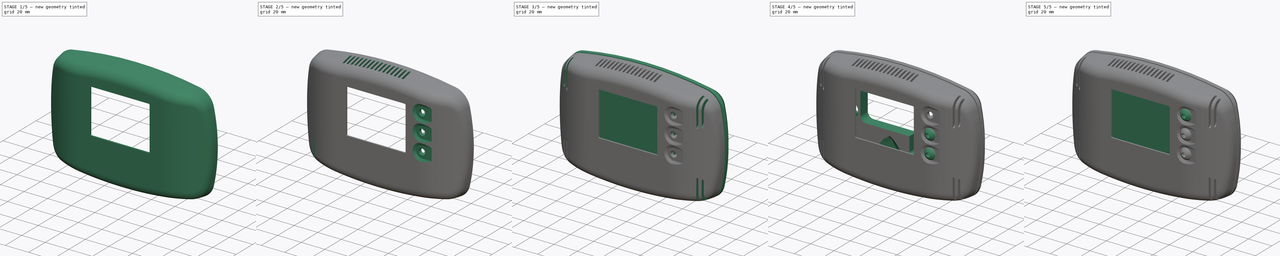
[diagram: build sequence overview — one tinted view per stage of 5, left to right]
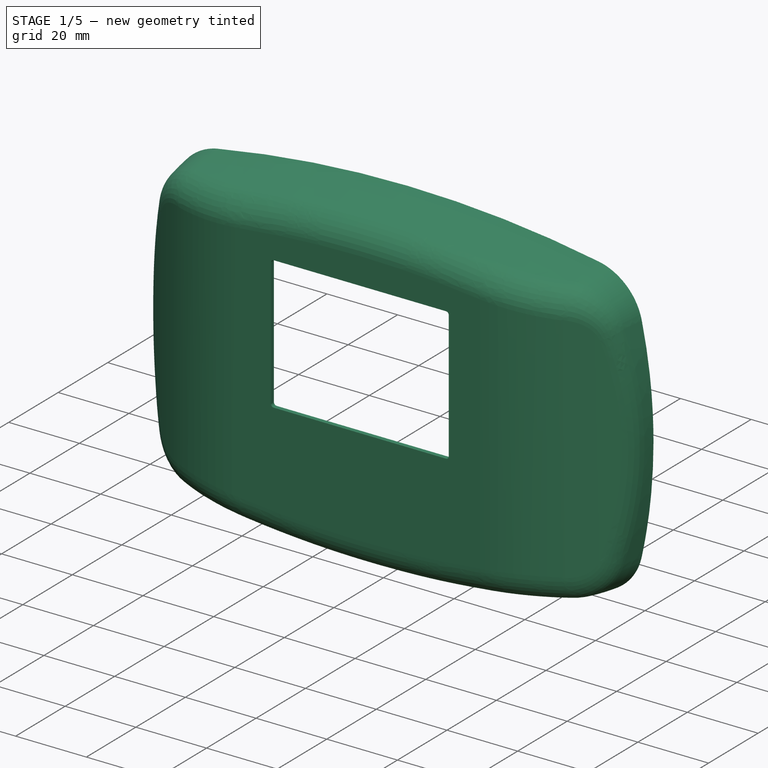
[diagram: stage 1 of 5 — iso view after this stage's code; geometry added in this stage tinted green]
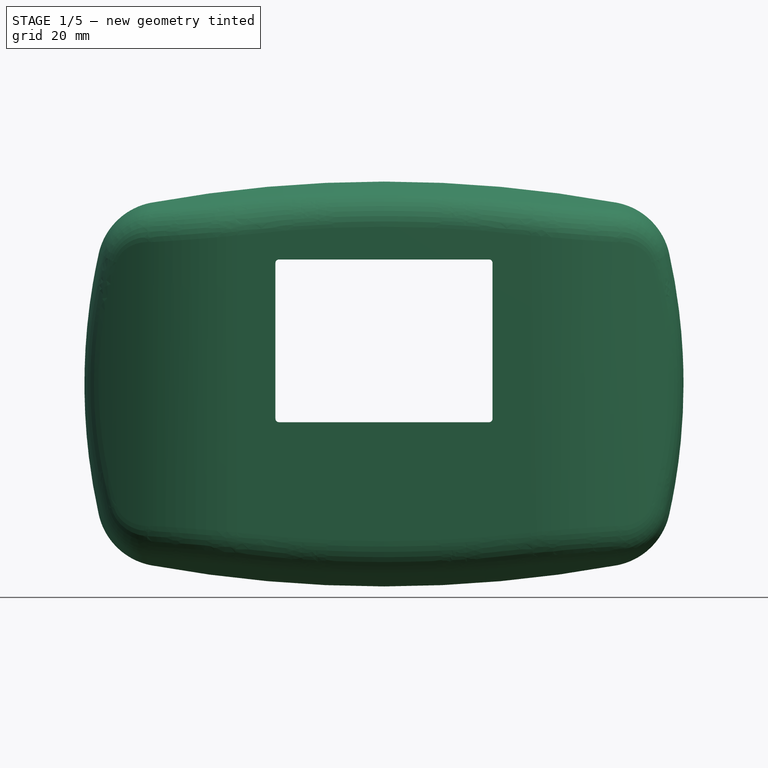
[diagram: stage 1 of 5 — front view after this stage's code; geometry added in this stage tinted green]
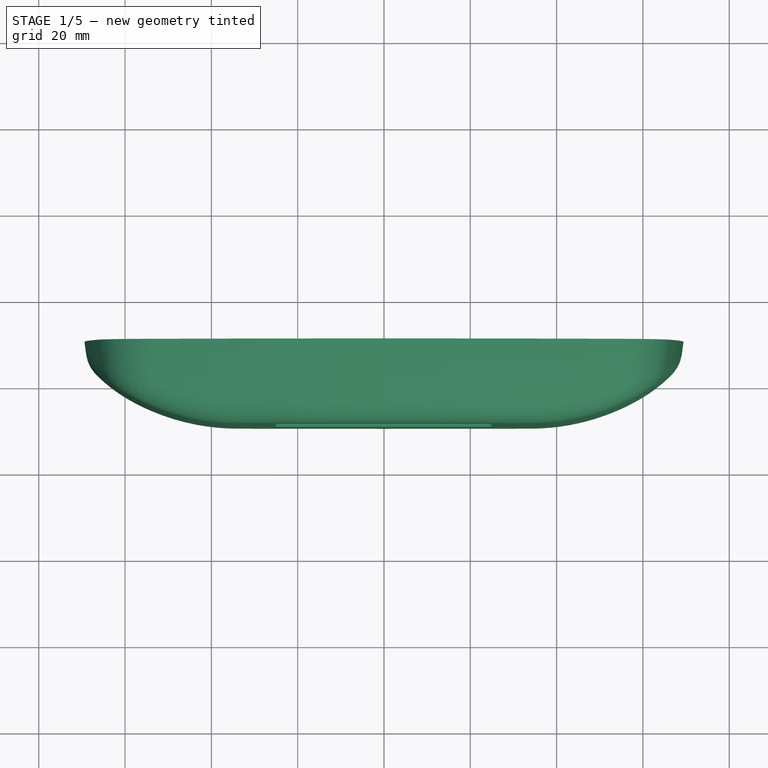
[diagram: stage 1 of 5 — top view after this stage's code; geometry added in this stage tinted green]
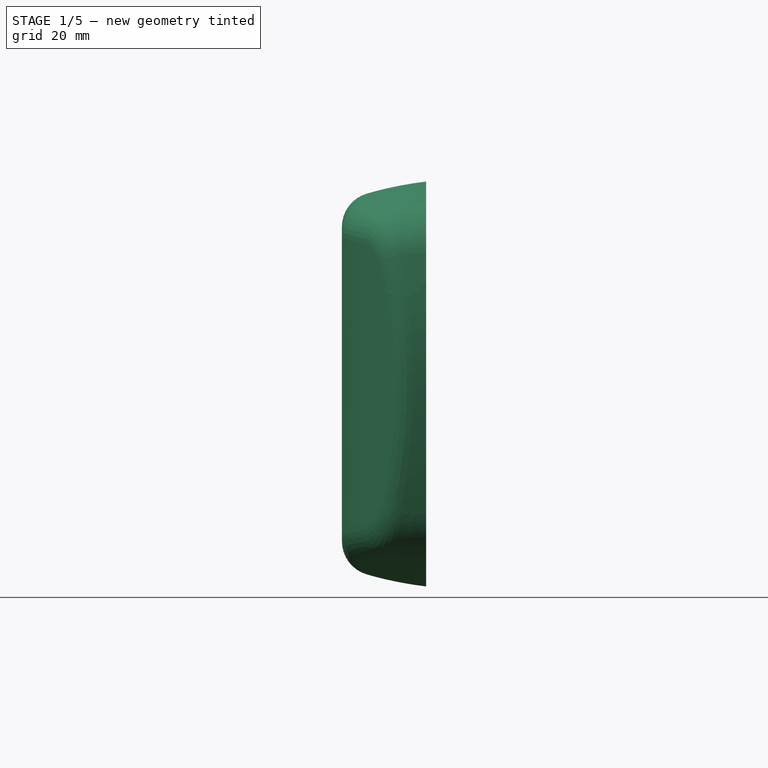
[diagram: stage 1 of 5 — right view after this stage's code; geometry added in this stage tinted green]
FCSTD DOCUMENT  (FreeCAD 0.19R24267 +99 (Git))
Label: Simple model for user manual
License: All rights reserved
LicenseURL: http://en.wikipedia.org/wiki/All_rights_reserved
objects: Sketcher::SketchObject×49, PartDesign::Pocket×19, PartDesign::Pad×7, PartDesign::Mirrored×7, PartDesign::Body×6, PartDesign::SubtractivePipe×5, PartDesign::MultiTransform×4, PartDesign::LinearPattern×3, Part::FeaturePython×3, PartDesign::Groove×3, Part::Compound×2, Part::Feature×2, App::Part×2, PartDesign::Fillet×2, PartDesign::Plane×2, PartDesign::Revolution×1, PartDesign::AdditivePipe×1, PartDesign::SubtractiveLoft×1, TechDraw::DrawSVGTemplate×1, TechDraw::DrawProjGroupItem×1, +2 more types
note: 156 computed .brp shape members not serialized (recipe doc carries the construction recipe); baked Part::Feature solids carry a one-line shape summary decoded from their .brp

FEATURE [PartDesign::Body] Body017  label="Housing bottom"
  Group = -> [Sketch027,Sketch028,Pad016,Sketch029,SubtractivePipe,Fillet,Sketch031,DatumPlane,Pocket009,Revolution,Sketch068,Groove001,MultiTransform002,Mirrored011,Mirrored012,Sketch069,Sketch084,Pocket004,AdditivePipe013,Sketch085,Pocket017,Sketch086,Pocket018,Sketch088,Sketch087,Pocket019,Pocket020,Sketch089,Sketch090,SubtractiveLoft,Sketch101,Sketch133,Pocket026]
  Origin = -> Origin018
  Tip = -> Fillet
FEATURE [Sketcher::SketchObject] Sketch071  label="ht edge trj"
  FullyConstrained = true
  MapMode = 5
  Placement = pos=(0,0,0) rot=(1,0,0;1.5708rad)
  Support = -> [XZ_Plane043]
  sketch-geometry (14):
    g0: ArcOfCircle CenterX=-2.3e-15 CenterY=-252.5 CenterZ=0 NormalX=0 NormalY=0 NormalZ=1 AngleXU=0 Radius=300 StartAngle=1.39005 EndAngle=1.75154
    g1: ArcOfCircle CenterX=5.98e-14 CenterY=252.5 CenterZ=0 NormalX=0 NormalY=0 NormalZ=1 AngleXU=0 Radius=300 StartAngle=4.53164 EndAngle=4.89314
    g2: LineSegment StartX=0 StartY=47.5 StartZ=0 EndX=0 EndY=-47.5 EndZ=0
    g3: ArcOfCircle CenterX=70 CenterY=0 CenterZ=0 NormalX=0 NormalY=0 NormalZ=1 AngleXU=0 Radius=140 StartAngle=2.92314 EndAngle=3.36005
    g4: ArcOfCircle CenterX=-70 CenterY=0 CenterZ=0 NormalX=0 NormalY=0 NormalZ=1 AngleXU=0 Radius=140 StartAngle=6.06473 EndAngle=6.50164
    g5: ArcOfCircle CenterX=51.0529 CenterY=26.8736 CenterZ=0 NormalX=0 NormalY=0 NormalZ=1 AngleXU=0 Radius=16 StartAngle=0.218456 EndAngle=1.39005
    g6: ArcOfCircle CenterX=-51.0529 CenterY=26.8736 CenterZ=0 NormalX=0 NormalY=0 NormalZ=1 AngleXU=0 Radius=16 StartAngle=1.75154 EndAngle=2.92314
    g7: ArcOfCircle CenterX=51.0529 CenterY=-26.8736 CenterZ=0 NormalX=0 NormalY=0 NormalZ=1 AngleXU=0 Radius=16 StartAngle=4.89314 EndAngle=6.06473
    g8: ArcOfCircle CenterX=-51.0529 CenterY=-26.8736 CenterZ=0 NormalX=0 NormalY=0 NormalZ=1 AngleXU=0 Radius=16 StartAngle=3.36005 EndAngle=4.53164
    g9: LineSegment StartX=-51.0529 StartY=26.8736 StartZ=0 EndX=51.0529 EndY=26.8736 EndZ=0
    g10: LineSegment StartX=51.0529 StartY=26.8736 StartZ=0 EndX=51.0529 EndY=-26.8736 EndZ=0
    g11: LineSegment StartX=51.0529 StartY=-26.8736 StartZ=0 EndX=-51.0529 EndY=-26.8736 EndZ=0
    g12: LineSegment StartX=-51.0529 StartY=-26.8736 StartZ=0 EndX=-51.0529 EndY=26.8736 EndZ=0
    g13: LineSegment StartX=-70 StartY=0 StartZ=0 EndX=70 EndY=0 EndZ=0
  constraints (36):
    c: PointOnObject(g2,g0)
    c: PointOnObject(g2,g1)
    c: DistanceY(g2,g2) = 95
    c: Equal(g4,g3)
    c: Equal(g0,g1)
    c: Tangent(g0,g5) = -1.5708
    c: Tangent(g4,g5) = -1.5708
    c: Tangent(g4,g7) = -1.5708
    c: Tangent(g1,g7) = -1.5708
    c: Tangent(g8,g1) = -1.5708
    c: Tangent(g3,g8) = -1.5708
    c: Tangent(g3,g6) = -1.5708
    c: Tangent(g0,g6) = -1.5708
    c: Equal(g6,g5)
    c: Equal(g5,g7)
    c: Equal(g7,g8)
    c: Radius(g5) = 16
    c: Coincident(g9,g10)
    c: Coincident(g10,g11)
    c: Coincident(g11,g12)
    c: Coincident(g12,g9)
    c: Horizontal(g9)
    c: Horizontal(g11)
    c: Coincident(g9,g6)
    c: Coincident(g10,g7)
    c: Coincident(g5,g9)
    c: Coincident(g8,g11)
    c: Radius(g4) = 140
    c: Radius(g0) = 300
    c: Coincident(g13,g4)
    c: Coincident(g13,g3)
    c: PointOnObject(g3,g4)
    c: DistanceY(g3,g-1) = 0
    c: Symmetric(g2,g2,g13)
    c: PointOnObject(g-1,g2)
    c: Symmetric(g5,g6,g2)
FEATURE [Sketcher::SketchObject] Sketch070  label="ht base shape"
  FullyConstrained = true
  MapMode = 5
  Support = -> [XY_Plane043]
  sketch-geometry (6):
    g0: LineSegment StartX=-34 StartY=-29.5 StartZ=0 EndX=34 EndY=-29.5 EndZ=0
    g1: ArcOfCircle CenterX=34 CenterY=21.2813 CenterZ=0 NormalX=0 NormalY=0 NormalZ=1 AngleXU=0 Radius=50.7813 StartAngle=4.71239 EndAngle=5.52869
    g2: ArcOfCircle CenterX=-34 CenterY=21.2813 CenterZ=0 NormalX=0 NormalY=0 NormalZ=1 AngleXU=0 Radius=50.7813 StartAngle=3.89609 EndAngle=4.71239
    g3: LineSegment StartX=-71 StartY=0 StartZ=0 EndX=71 EndY=0 EndZ=0
    g4: LineSegment StartX=71 StartY=0 StartZ=0 EndX=71 EndY=-13.5 EndZ=0
    g5: LineSegment StartX=-71 StartY=-13.5 StartZ=0 EndX=-71 EndY=0 EndZ=0
  constraints (16):
    c: Tangent(g0,g2) = -1.5708
    c: Tangent(g0,g1) = -1.5708
    c: DistanceY(g0,g-1) = 29.5
    c: Coincident(g3,g4)
    c: Coincident(g5,g3)
    c: Horizontal(g3)
    c: Vertical(g4)
    c: Vertical(g5)
    c: PointOnObject(g3,g-1)
    c: Coincident(g4,g1)
    c: Coincident(g2,g5)
    c: Symmetric(g1,g2,g-2)
    c: DistanceX(g0,g0) = 68
    c: Symmetric(g1,g2,g-2)
    c: DistanceX(g3,g3) = 142
    c: DistanceY(g0,g1) = 16
FEATURE [PartDesign::Pad] Pad025  label="HT Base shape"
  Direction = (1,1,1)
  Length = 100
  Length2 = 60
  Midplane = true
  Profile = -> Sketch070
  Type = 0
FEATURE [Sketcher::SketchObject] Sketch072  label="ht edge crs"
  FullyConstrained = true
  MapMode = 5
  Placement = pos=(0,0,0) rot=(0.57735,0.57735,0.57735;2.0944rad)
  Support = -> [YZ_Plane043]
  sketch-geometry (4):
    g0: LineSegment StartX=5.2e-15 StartY=70 StartZ=0 EndX=-30 EndY=70 EndZ=0
    g1: LineSegment StartX=-30 StartY=70 StartZ=0 EndX=-30 EndY=42.0299 EndZ=0
    g2: LineSegment StartX=5.2e-15 StartY=47.5 StartZ=0 EndX=5.2e-15 EndY=70 EndZ=0
    g3: ArcOfCircle CenterX=0 CenterY=-37.5 CenterZ=0 NormalX=0 NormalY=0 NormalZ=1 AngleXU=0 Radius=85 StartAngle=1.5708 EndAngle=1.93151
  constraints (13):
    c: Coincident(g0,g1)
    c: Coincident(g2,g0)
    c: Horizontal(g0)
    c: Vertical(g1)
    c: Vertical(g2)
    c: PointOnObject(g0,g-2)
    c: Coincident(g3,g1)
    c: Coincident(g2,g3)
    c: DistanceY(g2) = 47.5
    c: DistanceX(g1,g-1) = 30
    c: PointOnObject(g3,g-2)
    c: DistanceY(g0) = 70
    c: Radius(g3) = 85
FEATURE [PartDesign::SubtractivePipe] SubtractivePipe001  label="HT Edge"
  AuxilleryCurvelinear = true
  AuxillerySpineTangent = false
  BaseFeature = -> Pad025
  Binormal = (0,0,0)
  Mode = 0
  Profile = -> Sketch072
  Spine = -> Sketch071
  SpineTangent = false
  Transformation = 0
  Transition = 0
FEATURE [PartDesign::Fillet] Fillet002  label="HT Base fillet"
  Base = -> SubtractivePipe001 [Edge10]
  BaseFeature = -> SubtractivePipe001
  Radius = 8
  SupportTransform = false
FEATURE [Sketcher::SketchObject] Sketch073  label="ht cable cavity"
  AttachmentOffset = pos=(0,0,25) rot=(0,0,1;0rad)
  FullyConstrained = true
  MapMode = 5
  Placement = pos=(0,-25,-5.6e-15) rot=(1,0,0;1.5708rad)
  Support = -> [XZ_Plane043]
  sketch-geometry (13):
    g0: ArcOfCircle CenterX=3.7e-15 CenterY=-102 CenterZ=0 NormalX=0 NormalY=0 NormalZ=1 AngleXU=0 Radius=140 StartAngle=1.3467 EndAngle=1.79489
    g1: LineSegment StartX=35 StartY=29.6245 StartZ=0 EndX=35 EndY=-2 EndZ=0
    g2: LineSegment StartX=30 StartY=-7 StartZ=0 EndX=-30 EndY=-7 EndZ=0
    g3: LineSegment StartX=-35 StartY=-2 StartZ=0 EndX=-35 EndY=29.6245 EndZ=0
    g4: GeomPoint X=0 Y=38 Z=0
    g5: ArcOfCircle CenterX=-30 CenterY=29.6245 CenterZ=0 NormalX=0 NormalY=0 NormalZ=1 AngleXU=0 Radius=5 StartAngle=1.79489 EndAngle=3.14159
    g6: ArcOfCircle CenterX=-30 CenterY=-2 CenterZ=0 NormalX=0 NormalY=0 NormalZ=1 AngleXU=0 Radius=5 StartAngle=3.14159 EndAngle=4.71239
    g7: ArcOfCircle CenterX=30 CenterY=-2 CenterZ=0 NormalX=0 NormalY=0 NormalZ=1 AngleXU=0 Radius=5 StartAngle=4.71239 EndAngle=6.28319
    g8: ArcOfCircle CenterX=30 CenterY=29.6245 CenterZ=0 NormalX=0 NormalY=0 NormalZ=1 AngleXU=0 Radius=5 StartAngle=0 EndAngle=1.3467
    g9: LineSegment StartX=30 StartY=29.6245 StartZ=0 EndX=-30 EndY=29.6245 EndZ=0
    g10: LineSegment StartX=-30 StartY=29.6245 StartZ=0 EndX=-30 EndY=-2 EndZ=0
    g11: LineSegment StartX=-30 StartY=-2 StartZ=0 EndX=30 EndY=-2 EndZ=0
    g12: LineSegment StartX=30 StartY=-2 StartZ=0 EndX=30 EndY=29.6245 EndZ=0
  constraints (30):
    c: Horizontal(g2)
    c: Vertical(g1)
    c: Vertical(g3)
    c: PointOnObject(g4,g0)
    c: PointOnObject(g4,g-2)
    c: DistanceY(g4) = 38
    c: Radius(g0) = 140
    c: Tangent(g0,g5) = -1.5708
    c: Tangent(g3,g5) = 1.5708
    c: Tangent(g2,g6) = 1.5708
    c: Tangent(g3,g6) = 1.5708
    c: Tangent(g2,g7) = 1.5708
    c: Tangent(g1,g7) = 1.5708
    c: Tangent(g1,g8) = 1.5708
    c: Tangent(g0,g8) = -1.5708
    c: Coincident(g9,g10)
    c: Coincident(g10,g11)
    c: Coincident(g11,g12)
    c: Coincident(g12,g9)
    c: Horizontal(g11)
    c: Vertical(g10)
    c: Vertical(g12)
    c: Coincident(g9,g8)
    c: Coincident(g10,g6)
    c: Coincident(g5,g9)
    c: Symmetric(g5,g8,g-2)
    c: Coincident(g7,g11)
    c: DistanceX(g3,g1) = 70
    c: DistanceY(g2,g-1) = 7
    c: Radius(g7) = 5
FEATURE [PartDesign::Plane] DatumPlane001  label="ht sensor mirror plane"
  AttachmentOffset = pos=(0,0,-1) rot=(0,0,1;0rad)
  Length = 156.139
  MapMode = 5
  Placement = pos=(0,0,-1) rot=(0,0,1;0rad)
  ResizeMode = 0
  Support = -> [XY_Plane043]
  Width = 71.8916
FEATURE [Sketcher::SketchObject] Sketch077  label="ht magnet pocket"
  AttachmentOffset = pos=(0,0,-55) rot=(0,0,1;0rad)
  FullyConstrained = true
  MapMode = 5
  Placement = pos=(-55,1.22e-14,-1.22e-14) rot=(0.57735,0.57735,0.57735;2.0944rad)
  Support = -> [YZ_Plane043]
  sketch-geometry (5):
    g0: LineSegment StartX=-16.1 StartY=27.15 StartZ=0 EndX=-10.1 EndY=27.15 EndZ=0
    g1: LineSegment StartX=-10.1 StartY=27.15 StartZ=0 EndX=-10.1 EndY=22 EndZ=0
    g2: LineSegment StartX=-10.1 StartY=22 StartZ=0 EndX=-16.1 EndY=22 EndZ=0
    g3: LineSegment StartX=-16.1 StartY=22 StartZ=0 EndX=-16.1 EndY=27.15 EndZ=0
    g4: LineSegment StartX=-10.1 StartY=22 StartZ=0 EndX=-4.95 EndY=22 EndZ=0
  constraints (15):
    c: Coincident(g0,g1)
    c: Coincident(g1,g2)
    c: Coincident(g2,g3)
    c: Coincident(g3,g0)
    c: Horizontal(g0)
    c: Horizontal(g2)
    c: Vertical(g1)
    c: Vertical(g3)
    c: Coincident(g4,g1)
    c: Horizontal(g4)
    c: DistanceY(g2) = 22
    c: DistanceY(g3,g3) = 5.15
    c: Equal(g4,g1)
    c: DistanceX(g1,g-1) = 10.1
    c: DistanceX(g0,g0) = 6
FEATURE [PartDesign::Groove] Groove003  label="HT Magnet pocket"
  Angle = 360
  Axis = (1.7e-15,5.15,-1.1e-15)
  Base = (-55,-10.1,22)
  BaseFeature = -> Fillet002
  Profile = -> Sketch077
  ReferenceAxis = -> Sketch077 [Axis0]
  Reversed = true
FEATURE [PartDesign::Mirrored] Mirrored016
  MirrorPlane = -> DatumPlane001
FEATURE [PartDesign::Mirrored] Mirrored014
  MirrorPlane = -> YZ_Plane043
FEATURE [PartDesign::MultiTransform] MultiTransform003  label="HT Other magnet pockets"
  BaseFeature = -> Groove003
  Originals = -> [Groove003]
  Transformations = -> [Mirrored016,Mirrored014]
FEATURE [Sketcher::SketchObject] Sketch078  label="ht separation top bottom"
  FullyConstrained = true
  MapMode = 5
  Placement = pos=(0,0,0) rot=(0.57735,0.57735,0.57735;2.0944rad)
  Support = -> [YZ_Plane043]
  sketch-geometry (4):
    g0: LineSegment StartX=-10 StartY=60 StartZ=0 EndX=40 EndY=60 EndZ=0
    g1: LineSegment StartX=40 StartY=60 StartZ=0 EndX=40 EndY=-60 EndZ=0
    g2: LineSegment StartX=40 StartY=-60 StartZ=0 EndX=-10 EndY=-60 EndZ=0
    g3: LineSegment StartX=-10 StartY=-60 StartZ=0 EndX=-10 EndY=60 EndZ=0
  constraints (11):
    c: Coincident(g0,g1)
    c: Coincident(g1,g2)
    c: Coincident(g2,g3)
    c: Coincident(g3,g0)
    c: Horizontal(g0)
    c: Horizontal(g2)
    c: Vertical(g1)
    c: DistanceX(g0,g-1) = 10
    c: DistanceX(g0,g0) = -50
    c: Symmetric(g0,g2,g-1)
    c: DistanceY(g3,g3) = 120
FEATURE [Sketcher::SketchObject] Sketch079  label="ht screen visible hole"
  FullyConstrained = true
  MapMode = 5
  Placement = pos=(0,0,0) rot=(1,0,0;1.5708rad)
  Support = -> [XZ_Plane043]
  sketch-geometry (13):
    g0: LineSegment StartX=-24.35 StartY=28.05 StartZ=0 EndX=24.35 EndY=28.05 EndZ=0
    g1: LineSegment StartX=24.35 StartY=28.05 StartZ=0 EndX=24.35 EndY=-8.05 EndZ=0
    g2: LineSegment StartX=24.35 StartY=-8.05 StartZ=0 EndX=-24.35 EndY=-8.05 EndZ=0
    g3: LineSegment StartX=-24.35 StartY=-8.05 StartZ=0 EndX=-24.35 EndY=28.05 EndZ=0
    g4: LineSegment StartX=-24.35 StartY=28.85 StartZ=0 EndX=24.35 EndY=28.85 EndZ=0
    g5: LineSegment StartX=25.15 StartY=28.05 StartZ=0 EndX=25.15 EndY=-8.05 EndZ=0
    g6: LineSegment StartX=24.35 StartY=-8.85 StartZ=0 EndX=-24.35 EndY=-8.85 EndZ=0
    g7: LineSegment StartX=-25.15 StartY=-8.05 StartZ=0 EndX=-25.15 EndY=28.05 EndZ=0
    g8: ArcOfCircle CenterX=24.35 CenterY=28.05 CenterZ=0 NormalX=0 NormalY=0 NormalZ=1 AngleXU=0 Radius=0.8 StartAngle=4.911e-12 EndAngle=1.5708
    g9: ArcOfCircle CenterX=-24.35 CenterY=28.05 CenterZ=0 NormalX=0 NormalY=0 NormalZ=1 AngleXU=0 Radius=0.8 StartAngle=1.5708 EndAngle=3.14159
    g10: ArcOfCircle CenterX=-24.35 CenterY=-8.05 CenterZ=0 NormalX=0 NormalY=0 NormalZ=1 AngleXU=0 Radius=0.8 StartAngle=3.14159 EndAngle=4.71239
    g11: ArcOfCircle CenterX=24.35 CenterY=-8.05 CenterZ=0 NormalX=0 NormalY=0 NormalZ=1 AngleXU=0 Radius=0.8 StartAngle=4.71239 EndAngle=6.28319
    g12: LineSegment StartX=-24.35 StartY=10 StartZ=0 EndX=24.35 EndY=10 EndZ=0
  constraints (30):
    c: Coincident(g0,g1)
    c: Coincident(g1,g2)
    c: Coincident(g2,g3)
    c: Coincident(g3,g0)
    c: Horizontal(g2)
    c: Vertical(g1)
    c: Vertical(g3)
    c: Horizontal(g4)
    c: Horizontal(g6)
    c: Vertical(g5)
    c: Tangent(g4,g8) = 1.5708
    c: Tangent(g5,g8) = 1.5708
    c: Tangent(g4,g9) = 1.5708
    c: Tangent(g7,g9) = 1.5708
    c: Tangent(g6,g10) = 1.5708
    c: Tangent(g7,g10) = 1.5708
    c: Tangent(g5,g11) = 1.5708
    c: Tangent(g6,g11) = 1.5708
    c: Coincident(g1,g11)
    c: Coincident(g0,g8)
    c: Coincident(g0,g9)
    c: Coincident(g2,g10)
    c: Symmetric(g8,g9,g-2)
    c: DistanceX(g7,g5) = 50.3
    c: DistanceY(g6,g4) = 37.7
    c: PointOnObject(g12,g3)
    c: PointOnObject(g12,g1)
    c: Symmetric(g8,g11,g12)
    c: DistanceY(g12) = 10
    c: Radius(g8) = 0.8
FEATURE [PartDesign::Pocket] Pocket011  label="HT Cable cavity"
  BaseFeature = -> MultiTransform003
  Length = 5
  Length2 = 100
  Profile = -> Sketch073
  Type = 1
FEATURE [PartDesign::Pocket] Pocket010  label="HT Separation top bottom"
  BaseFeature = -> Pocket011
  Length = 5
  Length2 = 100
  Midplane = true
  Profile = -> Sketch078
  Type = 1
FEATURE [PartDesign::Pocket] Pocket013  label="HT Screen visible hole"
  BaseFeature = -> Pocket010
  Length = 5
  Length2 = 100
  Profile = -> Sketch079
  Reversed = true
  Type = 1
FEATURE [Sketcher::SketchObject] Sketch080
  AttachmentOffset = pos=(0,0,28.3) rot=(0,0,1;0rad)
  FullyConstrained = true
  MapMode = 5
  Placement = pos=(0,-28.3,-6.3e-15) rot=(1,0,0;1.5708rad)
  Support = -> [XZ_Plane043]
  sketch-geometry (29):
    g0: LineSegment StartX=-33.35 StartY=31.4 StartZ=0 EndX=27 EndY=31.4 EndZ=0
    g1: LineSegment StartX=27 StartY=31.4 StartZ=0 EndX=27 EndY=-11.4 EndZ=0
    g2: LineSegment StartX=27 StartY=-11.4 StartZ=0 EndX=-33.35 EndY=-11.4 EndZ=0
    g3: LineSegment StartX=-33.35 StartY=-11.4 StartZ=0 EndX=-33.35 EndY=31.4 EndZ=0
    g4: LineSegment StartX=-33.35 StartY=10 StartZ=0 EndX=27 EndY=10 EndZ=0
    g5: ArcOfCircle CenterX=23.5359 CenterY=33.4 CenterZ=0 NormalX=0 NormalY=0 NormalZ=1 AngleXU=0 Radius=2 StartAngle=3.66519 EndAngle=5.75959
    g6: ArcOfCircle CenterX=-29.8859 CenterY=33.4 CenterZ=0 NormalX=0 NormalY=0 NormalZ=1 AngleXU=0 Radius=2 StartAngle=3.66519 EndAngle=5.75959
    g7: ArcOfCircle CenterX=-35.35 CenterY=10 CenterZ=0 NormalX=0 NormalY=0 NormalZ=1 AngleXU=0 Radius=2 StartAngle=5.23599 EndAngle=7.33038
    g8: LineSegment StartX=29 StartY=31.4 StartZ=0 EndX=29 EndY=13.4641 EndZ=0
    g9: LineSegment StartX=27 StartY=-13.4 StartZ=0 EndX=3.4641 EndY=-13.4 EndZ=0
    g10: LineSegment StartX=-35.35 StartY=-11.4 StartZ=0 EndX=-35.35 EndY=6.5359 EndZ=0
    g11: ArcOfCircle CenterX=27 CenterY=31.4 CenterZ=0 NormalX=0 NormalY=0 NormalZ=1 AngleXU=0 Radius=2 StartAngle=-9e-16 EndAngle=2.61799
    g12: ArcOfCircle CenterX=27 CenterY=-11.4 CenterZ=0 NormalX=0 NormalY=0 NormalZ=1 AngleXU=0 Radius=2 StartAngle=4.71239 EndAngle=6.28319
    g13: ArcOfCircle CenterX=-33.35 CenterY=-11.4 CenterZ=0 NormalX=0 NormalY=0 NormalZ=1 AngleXU=0 Radius=2 StartAngle=3.14159 EndAngle=4.71239
    g14: ArcOfCircle CenterX=-33.35 CenterY=31.4 CenterZ=0 NormalX=0 NormalY=0 NormalZ=1 AngleXU=0 Radius=2 StartAngle=0.523599 EndAngle=3.14159
    g15: LineSegment StartX=-26.4218 StartY=33.4 StartZ=0 EndX=20.0718 EndY=33.4 EndZ=0
    g16: ArcOfCircle CenterX=-26.4218 CenterY=31.4 CenterZ=0 NormalX=0 NormalY=0 NormalZ=1 AngleXU=0 Radius=2 StartAngle=1.5708 EndAngle=2.61799
    g17: ArcOfCircle CenterX=20.0718 CenterY=31.4 CenterZ=0 NormalX=0 NormalY=0 NormalZ=1 AngleXU=0 Radius=2 StartAngle=0.523599 EndAngle=1.5708
    g18: ArcOfCircle CenterX=29 CenterY=10 CenterZ=0 NormalX=0 NormalY=0 NormalZ=1 AngleXU=0 Radius=2 StartAngle=2.0944 EndAngle=4.18879
    g19: ArcOfCircle CenterX=27 CenterY=13.4641 CenterZ=0 NormalX=0 NormalY=0 NormalZ=1 AngleXU=0 Radius=2 StartAngle=5.23599 EndAngle=6.28319
    g20: LineSegment StartX=29 StartY=6.5359 StartZ=0 EndX=29 EndY=-11.4 EndZ=0
    g21: ArcOfCircle CenterX=27 CenterY=6.5359 CenterZ=0 NormalX=0 NormalY=0 NormalZ=1 AngleXU=0 Radius=2 StartAngle=0 EndAngle=1.0472
    g22: ArcOfCircle CenterX=0 CenterY=-13.4 CenterZ=0 NormalX=0 NormalY=0 NormalZ=1 AngleXU=0 Radius=2 StartAngle=0.523599 EndAngle=2.61799
    g23: ArcOfCircle CenterX=3.4641 CenterY=-11.4 CenterZ=0 NormalX=0 NormalY=0 NormalZ=1 AngleXU=0 Radius=2 StartAngle=3.66519 EndAngle=4.71239
    g24: LineSegment StartX=-3.4641 StartY=-13.4 StartZ=0 EndX=-33.35 EndY=-13.4 EndZ=0
    g25: ArcOfCircle CenterX=-3.4641 CenterY=-11.4 CenterZ=0 NormalX=0 NormalY=0 NormalZ=1 AngleXU=0 Radius=2 StartAngle=4.71239 EndAngle=5.75959
    g26: LineSegment StartX=-35.35 StartY=13.4641 StartZ=0 EndX=-35.35 EndY=31.4 EndZ=0
    g27: ArcOfCircle CenterX=-33.35 CenterY=6.5359 CenterZ=0 NormalX=0 NormalY=0 NormalZ=1 AngleXU=0 Radius=2 StartAngle=2.0944 EndAngle=3.14159
    g28: ArcOfCircle CenterX=-33.35 CenterY=13.4641 CenterZ=0 NormalX=0 NormalY=0 NormalZ=1 AngleXU=0 Radius=2 StartAngle=3.14159 EndAngle=4.18879
  constraints (75):
    c: Coincident(g0,g1)
    c: Coincident(g1,g2)
    c: Coincident(g2,g3)
    c: Coincident(g3,g0)
    c: Horizontal(g0)
    c: Horizontal(g2)
    c: Vertical(g1)
    c: Vertical(g3)
    c: DistanceY(g1,g1) = 42.8
    c: DistanceX(g2,g2) = 60.35
    c: PointOnObject(g4,g3)
    c: Symmetric(g0,g1,g4)
    c: DistanceY(g4) = 10
    c: DistanceX(g0) = 27
    c: Tangent(g5,g0)
    c: Tangent(g6,g0)
    c: Tangent(g7,g3)
    c: PointOnObject(g7,g4)
    c: Horizontal(g9)
    c: Vertical(g8)
    c: Tangent(g8,g11) = 1.5708
    c: Coincident(g0,g11)
    c: Tangent(g9,g12) = 1.5708
    c: Coincident(g1,g12)
    c: Tangent(g10,g13) = 1.5708
    c: Coincident(g2,g13)
    c: Coincident(g0,g14)
    c: Tangent(g6,g16) = 1.5708
    c: Tangent(g15,g16) = 1.5708
    c: Tangent(g6,g14) = 1.5708
    c: Equal(g16,g6)
    c: Equal(g6,g14)
    c: Radius(g14) = 2
    c: Equal(g14,g5)
    c: Equal(g5,g11)
    c: Equal(g13,g7)
    c: Horizontal(g15)
    c: Tangent(g11,g5) = 1.5708
    c: Tangent(g5,g17) = 1.5708
    c: Tangent(g15,g17) = 1.5708
    c: Equal(g11,g17)
    c: Tangent(g11,g15)
    c: Tangent(g18,g1)
    c: PointOnObject(g18,g4)
    c: Tangent(g8,g19) = 1.5708
    c: Tangent(g18,g19) = 1.5708
    c: Equal(g18,g19)
    c: Equal(g19,g11)
    c: Vertical(g20)
    c: Tangent(g12,g20) = 1.5708
    c: Tangent(g20,g21) = 1.5708
    c: Tangent(g18,g21) = 1.5708
    c: Equal(g21,g18)
    c: Equal(g12,g14)
    c: Vertical(g10)
    c: Tangent(g22,g23) = 1.5708
    c: Tangent(g9,g23) = 1.5708
    c: Tangent(g22,g2)
    c: PointOnObject(g22,g-2)
    c: Equal(g23,g22)
    c: Equal(g22,g14)
    c: Horizontal(g24)
    c: Tangent(g13,g24) = 1.5708
    c: Tangent(g22,g25) = 1.5708
    c: Tangent(g24,g25) = 1.5708
    c: Equal(g25,g22)
    c: Tangent(g10,g26)
    c: Tangent(g7,g27) = 1.5708
    c: Tangent(g10,g27) = 1.5708
    c: Tangent(g7,g28) = 1.5708
    c: Tangent(g26,g28) = 1.5708
    c: Equal(g28,g27)
    c: Equal(g27,g14)
    c: Tangent(g14,g26) = 1.5708
    c: PointOnObject(g4,g1)
FEATURE [PartDesign::Pocket] Pocket014  label="HT Screen glass hole"
  BaseFeature = -> Pocket013
  Length = 5
  Length2 = 100
  Profile = -> Sketch080
  Type = 1
FEATURE [Sketcher::SketchObject] Sketch081  label="ht screen PCB hole"
  AttachmentOffset = pos=(0,0,25) rot=(0,0,1;0rad)
  FullyConstrained = true
  MapMode = 5
  Placement = pos=(0,-25,-5.6e-15) rot=(1,0,0;1.5708rad)
  Support = -> [XZ_Plane043]
  sketch-geometry (22):
    g0: LineSegment StartX=-32 StartY=40 StartZ=0 EndX=28 EndY=40 EndZ=0
    g1: LineSegment StartX=36 StartY=32 StartZ=0 EndX=36 EndY=27.7 EndZ=0
    g2: LineSegment StartX=28 StartY=-40 StartZ=0 EndX=-32 EndY=-40 EndZ=0
    g3: LineSegment StartX=-46 StartY=-26 StartZ=0 EndX=-46 EndY=26 EndZ=0
    g4: ArcOfCircle CenterX=28 CenterY=32 CenterZ=0 NormalX=0 NormalY=0 NormalZ=1 AngleXU=0 Radius=8 StartAngle=0 EndAngle=1.5708
    g5: ArcOfCircle CenterX=28 CenterY=-32 CenterZ=0 NormalX=0 NormalY=0 NormalZ=1 AngleXU=0 Radius=8 StartAngle=4.71239 EndAngle=6.28319
    g6: ArcOfCircle CenterX=38 CenterY=25 CenterZ=0 NormalX=0 NormalY=0 NormalZ=1 AngleXU=0 Radius=2.7 StartAngle=4.71239 EndAngle=7.85398
    g7: ArcOfCircle CenterX=38 CenterY=10 CenterZ=0 NormalX=0 NormalY=0 NormalZ=1 AngleXU=0 Radius=2.7 StartAngle=4.71239 EndAngle=7.85398
    g8: ArcOfCircle CenterX=38 CenterY=-5 CenterZ=0 NormalX=0 NormalY=0 NormalZ=1 AngleXU=0 Radius=2.7 StartAngle=4.71239 EndAngle=7.85398
    g9: LineSegment StartX=38 StartY=-5 StartZ=0 EndX=38 EndY=10 EndZ=0
    g10: LineSegment StartX=38 StartY=10 StartZ=0 EndX=38 EndY=25 EndZ=0
    g11: LineSegment StartX=38 StartY=27.7 StartZ=0 EndX=36 EndY=27.7 EndZ=0
    g12: LineSegment StartX=38 StartY=22.3 StartZ=0 EndX=36 EndY=22.3 EndZ=0
    g13: LineSegment StartX=36 StartY=22.3 StartZ=0 EndX=36 EndY=12.7 EndZ=0
    g14: LineSegment StartX=38 StartY=12.7 StartZ=0 EndX=36 EndY=12.7 EndZ=0
    g15: LineSegment StartX=38 StartY=7.3 StartZ=0 EndX=36 EndY=7.3 EndZ=0
    g16: LineSegment StartX=36 StartY=7.3 StartZ=0 EndX=36 EndY=-2.3 EndZ=0
    g17: LineSegment StartX=38 StartY=-2.3 StartZ=0 EndX=36 EndY=-2.3 EndZ=0
    g18: LineSegment StartX=38 StartY=-7.7 StartZ=0 EndX=36 EndY=-7.7 EndZ=0
    g19: LineSegment StartX=36 StartY=-7.7 StartZ=0 EndX=36 EndY=-32 EndZ=0
    g20: ArcOfCircle CenterX=-32 CenterY=26 CenterZ=0 NormalX=0 NormalY=0 NormalZ=1 AngleXU=0 Radius=14 StartAngle=1.5708 EndAngle=3.14159
    g21: ArcOfCircle CenterX=-32 CenterY=-26 CenterZ=0 NormalX=0 NormalY=0 NormalZ=1 AngleXU=0 Radius=14 StartAngle=3.14159 EndAngle=4.71239
  constraints (53):
    c: Horizontal(g0)
    c: Horizontal(g2)
    c: Vertical(g1)
    c: Tangent(g1,g4) = 1.5708
    c: Tangent(g0,g4) = 1.5708
    c: Tangent(g2,g5) = 1.5708
    c: Symmetric(g5,g4,g-1)
    c: DistanceY(g2,g0) = 80
    c: DistanceX(g1) = 36
    c: Radius(g4) = 8
    c: Coincident(g9,g8)
    c: Coincident(g9,g7)
    c: Vertical(g9)
    c: Coincident(g10,g7)
    c: Coincident(g10,g6)
    c: Vertical(g10)
    c: DistanceY(g7) = 10
    c: Equal(g9,g10)
    c: DistanceY(g8,g6) = 30
    c: DistanceX(g6) = 38
    c: Horizontal(g11)
    c: Horizontal(g12)
    c: Tangent(g6,g12) = 1.5708
    c: Tangent(g6,g11) = -1.5708
    c: Tangent(g1,g13)
    c: Coincident(g11,g1)
    c: Coincident(g12,g13)
    c: Horizontal(g14)
    c: Horizontal(g15)
    c: Tangent(g7,g15) = 1.5708
    c: Tangent(g7,g14) = -1.5708
    c: Tangent(g13,g16)
    c: Coincident(g14,g13)
    c: Coincident(g15,g16)
    c: Horizontal(g17)
    c: Horizontal(g18)
    c: Tangent(g8,g17) = -1.5708
    c: Tangent(g8,g18) = 1.5708
    c: Tangent(g16,g19)
    c: Coincident(g17,g16)
    c: Coincident(g18,g19)
    c: Equal(g8,g7)
    c: Equal(g7,g6)
    c: Radius(g6) = 2.7
    c: Tangent(g5,g19) = 1.5708
    c: Tangent(g0,g20) = 1.5708
    c: Tangent(g3,g20) = 1.5708
    c: Tangent(g2,g21) = 1.5708
    c: Tangent(g3,g21) = 1.5708
    c: Equal(g20,g21)
    c: Radius(g20) = 14
    c: Vertical(g3)
    c: DistanceX(g3,g-1) = 46
FEATURE [PartDesign::Pocket] Pocket015  label="HT Screen PCB hole"
  BaseFeature = -> Pocket014
  Length = 5
  Length2 = 100
  Profile = -> Sketch081
  Type = 1
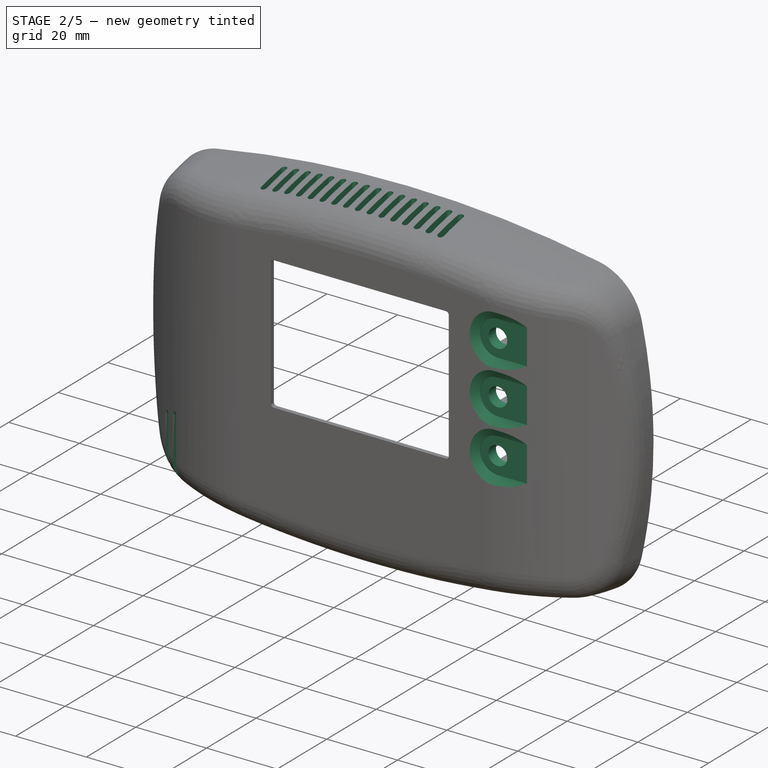
[diagram: stage 2 of 5 — iso view after this stage's code; geometry added in this stage tinted green]
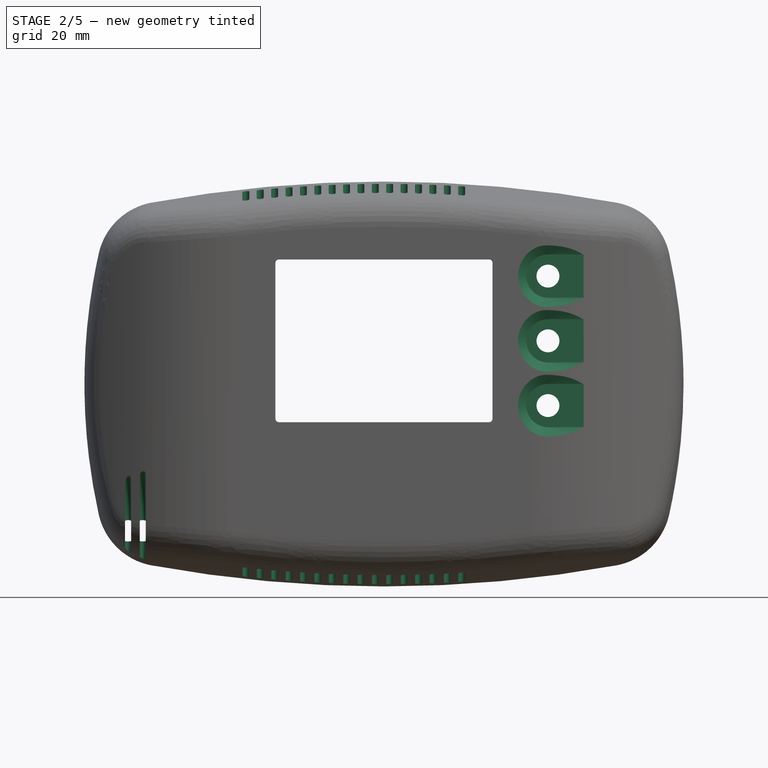
[diagram: stage 2 of 5 — front view after this stage's code; geometry added in this stage tinted green]
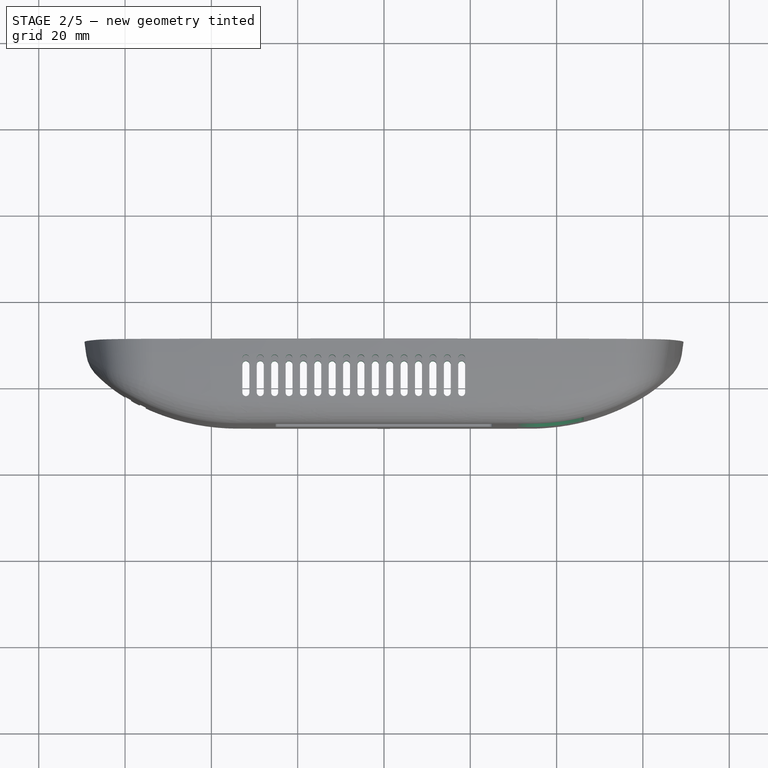
[diagram: stage 2 of 5 — top view after this stage's code; geometry added in this stage tinted green]
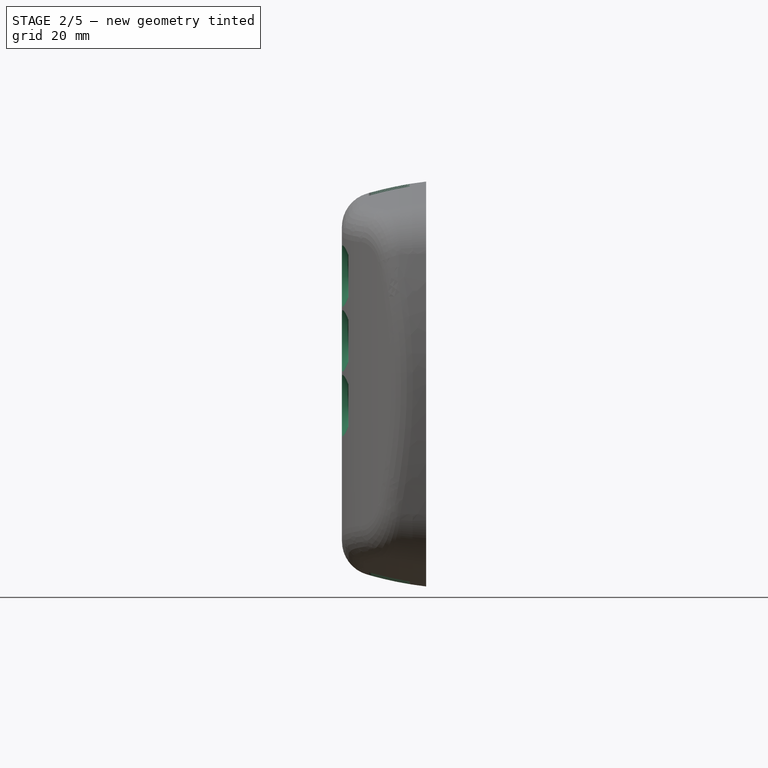
[diagram: stage 2 of 5 — right view after this stage's code; geometry added in this stage tinted green]
FEATURE [Sketcher::SketchObject] Sketch082
  AttachmentOffset = pos=(0,0,19.65) rot=(0,0,1;0rad)
  FullyConstrained = true
  MapMode = 5
  Placement = pos=(0,-19.65,-4.4e-15) rot=(1,0,0;1.5708rad)
  Support = -> [XZ_Plane043]
  sketch-geometry (18):
    g0: LineSegment StartX=-48 StartY=38.5 StartZ=0 EndX=48 EndY=38.5 EndZ=0
    g1: LineSegment StartX=49.5 StartY=37 StartZ=0 EndX=49.5 EndY=-38 EndZ=0
    g2: LineSegment StartX=48 StartY=-39.5 StartZ=0 EndX=-48 EndY=-39.5 EndZ=0
    g3: LineSegment StartX=-49.5 StartY=-38 StartZ=0 EndX=-49.5 EndY=-3.25 EndZ=0
    g4: LineSegment StartX=48 StartY=37 StartZ=0 EndX=-48 EndY=37 EndZ=0
    g5: LineSegment StartX=-48 StartY=37 StartZ=0 EndX=-48 EndY=-38 EndZ=0
    g6: LineSegment StartX=-48 StartY=-38 StartZ=0 EndX=48 EndY=-38 EndZ=0
    g7: LineSegment StartX=48 StartY=-38 StartZ=0 EndX=48 EndY=37 EndZ=0
    g8: ArcOfCircle CenterX=48 CenterY=37 CenterZ=0 NormalX=0 NormalY=0 NormalZ=1 AngleXU=0 Radius=1.5 StartAngle=1.7e-15 EndAngle=1.5708
    g9: ArcOfCircle CenterX=48 CenterY=-38 CenterZ=0 NormalX=0 NormalY=0 NormalZ=1 AngleXU=0 Radius=1.5 StartAngle=4.71239 EndAngle=6.28319
    g10: ArcOfCircle CenterX=-48 CenterY=-38 CenterZ=0 NormalX=0 NormalY=0 NormalZ=1 AngleXU=0 Radius=1.5 StartAngle=3.14159 EndAngle=4.71239
    g11: ArcOfCircle CenterX=-48 CenterY=37 CenterZ=0 NormalX=0 NormalY=0 NormalZ=1 AngleXU=0 Radius=1.5 StartAngle=1.5708 EndAngle=3.14159
    g12: LineSegment StartX=-47.5 StartY=1.25 StartZ=0 EndX=-45.5 EndY=1.25 EndZ=0
    g13: LineSegment StartX=-45.5 StartY=1.25 StartZ=0 EndX=-45.5 EndY=-1.25 EndZ=0
    g14: LineSegment StartX=-45.5 StartY=-1.25 StartZ=0 EndX=-47.5 EndY=-1.25 EndZ=0
    g15: LineSegment StartX=-49.5 StartY=3.25 StartZ=0 EndX=-49.5 EndY=37 EndZ=0
    g16: ArcOfCircle CenterX=-47.5 CenterY=3.25 CenterZ=0 NormalX=0 NormalY=0 NormalZ=1 AngleXU=0 Radius=2 StartAngle=3.14159 EndAngle=4.71239
    g17: ArcOfCircle CenterX=-47.5 CenterY=-3.25 CenterZ=0 NormalX=0 NormalY=0 NormalZ=1 AngleXU=0 Radius=2 StartAngle=1.5708 EndAngle=3.14159
  constraints (41):
    c: Horizontal(g0)
    c: Horizontal(g2)
    c: Vertical(g1)
    c: Vertical(g3)
    c: Coincident(g4,g5)
    c: Coincident(g5,g6)
    c: Coincident(g6,g7)
    c: Coincident(g7,g4)
    c: Horizontal(g6)
    c: Vertical(g5)
    c: Symmetric(g4,g4,g-2)
    c: DistanceX(g4,g4) = 96
    c: DistanceY(g7,g7) = 75
    c: DistanceY(g4) = 37
    c: Tangent(g1,g8) = 1.5708
    c: Tangent(g0,g8) = 1.5708
    c: Tangent(g1,g9) = 1.5708
    c: Tangent(g2,g9) = 1.5708
    c: Tangent(g2,g10) = 1.5708
    c: Tangent(g3,g10) = 1.5708
    c: Tangent(g0,g11) = 1.5708
    c: Coincident(g4,g11)
    c: Coincident(g4,g8)
    c: Coincident(g6,g9)
    c: Coincident(g5,g10)
    c: Radius(g8) = 1.5
    c: Coincident(g12,g13)
    c: Coincident(g13,g14)
    c: Horizontal(g12)
    c: Horizontal(g14)
    c: Vertical(g13)
    c: Tangent(g3,g15)
    c: Tangent(g12,g16) = -1.5708
    c: Tangent(g15,g16) = 1.5708
    c: Tangent(g14,g17) = -1.5708
    c: Tangent(g3,g17) = 1.5708
    c: Symmetric(g17,g16,g-1)
    c: DistanceY(g13,g13) = 2.5
    c: DistanceX(g15,g12) = 4
    c: Radius(g16) = 2
    c: Tangent(g11,g15) = 1.5708
FEATURE [PartDesign::Pocket] Pocket016  label="HT Cross connect PCB hole"
  BaseFeature = -> Pocket015
  Length = 5
  Length2 = 100
  Profile = -> Sketch082
  Type = 1
FEATURE [Sketcher::SketchObject] Sketch083  label="ht V groove"
  FullyConstrained = true
  MapMode = 5
  Placement = pos=(0,0,0) rot=(0.57735,0.57735,0.57735;2.0944rad)
  Support = -> [YZ_Plane043]
  sketch-geometry (5):
    g0: LineSegment StartX=-9 StartY=45.1321 StartZ=0 EndX=-12.5 EndY=43.5 EndZ=0
    g1: LineSegment StartX=-12.5 StartY=43.5 StartZ=0 EndX=-12.5 EndY=42.5 EndZ=0
    g2: LineSegment StartX=-12.5 StartY=42.5 StartZ=0 EndX=-9 EndY=40.8679 EndZ=0
    g3: LineSegment StartX=-9 StartY=40.8679 StartZ=0 EndX=-9 EndY=45.1321 EndZ=0
    g4: LineSegment StartX=-12.5 StartY=43 StartZ=0 EndX=-9 EndY=43 EndZ=0
  constraints (14):
    c: Coincident(g0,g1)
    c: Vertical(g1)
    c: Coincident(g1,g2)
    c: Coincident(g2,g3)
    c: Coincident(g3,g0)
    c: DistanceX(g0,g-1) = 9
    c: DistanceX(g0,g-1) = 12.5
    c: PointOnObject(g4,g1)
    c: PointOnObject(g4,g3)
    c: Symmetric(g2,g0,g4)
    c: Symmetric(g1,g0,g4)
    c: DistanceY(g1,g1) = 1
    c: Angle(g2,g0) = 0.872665
    c: DistanceY(g4) = 43
FEATURE [PartDesign::SubtractivePipe] SubtractivePipe002  label="HT V groove"
  AuxilleryCurvelinear = true
  AuxillerySpineTangent = false
  BaseFeature = -> Pocket016
  Binormal = (0,0,0)
  Mode = 0
  Profile = -> Sketch083
  Spine = -> Sketch071
  SpineTangent = false
  Transformation = 0
  Transition = 0
FEATURE [Sketcher::SketchObject] Sketch091  label="ht button hole"
  AttachmentOffset = pos=(0,0,-5) rot=(0,0,1;0rad)
  FullyConstrained = true
  MapMode = 5
  Placement = pos=(0,0,-5) rot=(0,0,1;0rad)
  Support = -> [XY_Plane043]
  sketch-geometry (5):
    g0: LineSegment StartX=38 StartY=-29.6 StartZ=0 EndX=38 EndY=0 EndZ=0
    g1: LineSegment StartX=38 StartY=0 StartZ=0 EndX=35.35 EndY=0 EndZ=0
    g2: LineSegment StartX=35.35 StartY=0 StartZ=0 EndX=35.35 EndY=-29.6 EndZ=0
    g3: LineSegment StartX=35.35 StartY=-29.6 StartZ=0 EndX=38 EndY=-29.6 EndZ=0
    g4: LineSegment StartX=38 StartY=0 StartZ=0 EndX=38 EndY=2.65 EndZ=0
  constraints (15):
    c: PointOnObject(g0,g-1)
    c: Vertical(g0)
    c: Coincident(g0,g1)
    c: PointOnObject(g1,g-1)
    c: Coincident(g1,g2)
    c: Vertical(g2)
    c: Coincident(g3,g0)
    c: Horizontal(g3)
    c: Coincident(g4,g0)
    c: Vertical(g4)
    c: Equal(g1,g4)
    c: DistanceX(g4) = 38
    c: DistanceX(g1,g1) = 2.65
    c: DistanceY(g3,g-1) = 29.6
    c: Coincident(g2,g3)
FEATURE [PartDesign::Groove] Groove  label="HT Button hole 1"
  Angle = 360
  Axis = (0,2.65,0)
  Base = (38,0,-5)
  BaseFeature = -> SubtractivePipe002
  Profile = -> Sketch091
  ReferenceAxis = -> Sketch091 [Axis0]
  Reversed = true
FEATURE [Sketcher::SketchObject] Sketch092
  AttachmentOffset = pos=(0,0,28) rot=(0,0,1;0rad)
  FullyConstrained = true
  MapMode = 5
  Placement = pos=(0,-28,-6.2e-15) rot=(1,0,0;1.5708rad)
  Support = -> [XZ_Plane043]
  sketch-geometry (4):
    g0: ArcOfCircle CenterX=38 CenterY=-5 CenterZ=0 NormalX=0 NormalY=0 NormalZ=1 AngleXU=0 Radius=5 StartAngle=1.5708 EndAngle=4.71239
    g1: ArcOfCircle CenterX=65 CenterY=-5 CenterZ=0 NormalX=0 NormalY=0 NormalZ=1 AngleXU=0 Radius=5 StartAngle=4.71239 EndAngle=7.85398
    g2: LineSegment StartX=38 StartY=-10 StartZ=0 EndX=65 EndY=-10 EndZ=0
    g3: LineSegment StartX=38 StartY=0 StartZ=0 EndX=65 EndY=0 EndZ=0
  constraints (10):
    c: Tangent(g0,g3) = 1.5708
    c: Tangent(g0,g2) = -1.5708
    c: Tangent(g2,g1) = -1.5708
    c: Tangent(g3,g1) = 1.5708
    c: Horizontal(g2)
    c: Equal(g0,g1)
    c: DistanceX(g-1,g0) = 38
    c: DistanceY(g0,g-1) = 5
    c: Radius(g0) = 5
    c: DistanceX(g3,g3) = 27
FEATURE [PartDesign::Pocket] Pocket021  label="HT Button plane"
  BaseFeature = -> Groove
  Length = 5
  Length2 = 100
  Profile = -> Sketch092
  Reversed = true
  Type = 1
FEATURE [Sketcher::SketchObject] Sketch093  label="ht btn fillet 2 - 38"
  AttachmentOffset = pos=(0,0,38) rot=(0,0,1;0rad)
  FullyConstrained = true
  MapMode = 5
  Placement = pos=(38,-8.4e-15,8.4e-15) rot=(0.57735,0.57735,0.57735;2.0944rad)
  Support = -> [YZ_Plane043]
  sketch-geometry (3):
    g0: LineSegment StartX=-28 StartY=-0.2 StartZ=0 EndX=-30 EndY=-0.2 EndZ=0
    g1: LineSegment StartX=-30 StartY=-0.2 StartZ=0 EndX=-30 EndY=3.2641 EndZ=0
    g2: LineSegment StartX=-30 StartY=3.2641 StartZ=0 EndX=-28 EndY=-0.2 EndZ=0
  constraints (9):
    c: Horizontal(g0)
    c: Coincident(g0,g1)
    c: Vertical(g1)
    c: Coincident(g1,g2)
    c: Coincident(g2,g0)
    c: DistanceX(g0,g-1) = 28
    c: Angle(g2,g0) = 1.0472
    c: DistanceX(g0,g0) = 2
    c: DistanceY(g0,g-1) = 0.2
FEATURE [Sketcher::SketchObject] Sketch094  label="ht btn fillet 1 - 50"
  AttachmentOffset = pos=(0,0,50) rot=(0,0,1;0rad)
  FullyConstrained = true
  MapMode = 5
  Placement = pos=(50,-1.11e-14,1.11e-14) rot=(0.57735,0.57735,0.57735;2.0944rad)
  Support = -> [YZ_Plane043]
  sketch-geometry (3):
    g0: LineSegment StartX=-28 StartY=-0.01 StartZ=0 EndX=-30 EndY=-0.01 EndZ=0
    g1: LineSegment StartX=-30 StartY=-0.01 StartZ=0 EndX=-30 EndY=7.4541 EndZ=0
    g2: LineSegment StartX=-30 StartY=7.4541 StartZ=0 EndX=-28 EndY=-0.01 EndZ=0
  constraints (9):
    c: Horizontal(g0)
    c: Coincident(g0,g1)
    c: Vertical(g1)
    c: Coincident(g1,g2)
    c: Coincident(g2,g0)
    c: DistanceX(g0,g-1) = 28
    c: Angle(g2,g0) = 1.309
    c: DistanceX(g0,g0) = 2
    c: DistanceY(g0,g-1) = 0.01
FEATURE [Sketcher::SketchObject] Sketch095  label="ht btn fillet 3 - 33"
  AttachmentOffset = pos=(0,0,-5) rot=(0,0,1;0rad)
  FullyConstrained = true
  MapMode = 5
  Placement = pos=(0,0,-5) rot=(0,0,1;0rad)
  Support = -> [XY_Plane043]
  sketch-geometry (3):
    g0: LineSegment StartX=33.2 StartY=-28 StartZ=0 EndX=33.2 EndY=-30 EndZ=0
    g1: LineSegment StartX=33.2 StartY=-30 StartZ=0 EndX=30.3437 EndY=-30 EndZ=0
    g2: LineSegment StartX=30.3437 StartY=-30 StartZ=0 EndX=33.2 EndY=-28 EndZ=0
  constraints (9):
    c: Coincident(g0,g1)
    c: Horizontal(g1)
    c: Coincident(g1,g2)
    c: Coincident(g2,g0)
    c: Vertical(g0)
    c: DistanceX(g0) = 33.2
    c: DistanceY(g0,g-1) = 28
    c: DistanceY(g0,g0) = 2
    c: Angle(g2,g0) = 0.959931
FEATURE [Sketcher::SketchObject] Sketch096  label="ht btn fillet 4 - 38"
  AttachmentOffset = pos=(0,0,38) rot=(0,0,1;0rad)
  FullyConstrained = true
  MapMode = 5
  Placement = pos=(38,-8.4e-15,8.4e-15) rot=(0.57735,0.57735,0.57735;2.0944rad)
  Support = -> [YZ_Plane043]
  sketch-geometry (3):
    g0: LineSegment StartX=-28 StartY=-9.8 StartZ=0 EndX=-30 EndY=-9.8 EndZ=0
    g1: LineSegment StartX=-30 StartY=-9.8 StartZ=0 EndX=-30 EndY=-13.2641 EndZ=0
    g2: LineSegment StartX=-30 StartY=-13.2641 StartZ=0 EndX=-28 EndY=-9.8 EndZ=0
  constraints (9):
    c: Horizontal(g0)
    c: Coincident(g0,g1)
    c: Vertical(g1)
    c: Coincident(g1,g2)
    c: Coincident(g2,g0)
    c: DistanceX(g0,g-1) = 28
    c: DistanceX(g0,g0) = 2
    c: Angle(g0,g2) = 1.0472
    c: DistanceY(g0,g-1) = 9.8
FEATURE [Sketcher::SketchObject] Sketch097  label="ht btn fillet 5 - 50"
  AttachmentOffset = pos=(0,0,50) rot=(0,0,1;0rad)
  FullyConstrained = true
  MapMode = 5
  Placement = pos=(50,-1.11e-14,1.11e-14) rot=(0.57735,0.57735,0.57735;2.0944rad)
  Support = -> [YZ_Plane043]
  sketch-geometry (3):
    g0: LineSegment StartX=-28 StartY=-9.8 StartZ=0 EndX=-30 EndY=-9.8 EndZ=0
    g1: LineSegment StartX=-30 StartY=-9.8 StartZ=0 EndX=-30 EndY=-17.2641 EndZ=0
    g2: LineSegment StartX=-30 StartY=-17.2641 StartZ=0 EndX=-28 EndY=-9.8 EndZ=0
  constraints (9):
    c: Horizontal(g0)
    c: Coincident(g0,g1)
    c: Vertical(g1)
    c: Coincident(g1,g2)
    c: Coincident(g2,g0)
    c: DistanceX(g0,g-1) = 28
    c: DistanceX(g0,g0) = 2
    c: Angle(g0,g2) = 1.309
    c: DistanceY(g0,g-1) = 9.8
FEATURE [Sketcher::SketchObject] Sketch098  label="ht btn fillet trj"
  AttachmentOffset = pos=(0,0,28) rot=(0,0,1;0rad)
  FullyConstrained = false
  MapMode = 5
  Placement = pos=(0,-28,-6.2e-15) rot=(1,0,0;1.5708rad)
  Support = -> [XZ_Plane043]
  sketch-geometry (3):
    g0: ArcOfCircle CenterX=38 CenterY=-5 CenterZ=0 NormalX=0 NormalY=0 NormalZ=1 AngleXU=0 Radius=5 StartAngle=1.57112 EndAngle=4.71239
    g1: LineSegment StartX=38 StartY=-10 StartZ=0 EndX=50.0016 EndY=-10 EndZ=0
    g2: LineSegment StartX=37.9984 StartY=-2.67881e-07 StartZ=0 EndX=50 EndY=0.00392837 EndZ=0
  constraints (8):
    c: Tangent(g0,g2) = 1.5708
    c: Tangent(g0,g1) = -1.5708
    c: Horizontal(g1)
    c: DistanceX(g-1,g0) = 38
    c: DistanceY(g0,g-1) = 5
    c: Radius(g0) = 5
    c: DistanceX(g2) = 50
    c: Equal(g2,g1)
FEATURE [PartDesign::SubtractivePipe] SubtractivePipe003  label="HT Btn fillet"
  AuxilleryCurvelinear = true
  AuxillerySpineTangent = false
  BaseFeature = -> Pocket021
  Binormal = (0,0,0)
  Mode = 2
  Profile = -> Sketch094
  Sections = -> [Sketch093,Sketch095,Sketch096,Sketch097]
  Spine = -> Sketch098
  SpineTangent = false
  Transformation = 1
  Transition = 0
FEATURE [PartDesign::LinearPattern] LinearPattern003  label="HT Other button holes"
  BaseFeature = -> SubtractivePipe003
  Direction = -> Z_Axis043
  Length = 30
  Occurrences = 3
  Originals = -> [Groove,SubtractivePipe003,Pocket021]
FEATURE [Sketcher::SketchObject] Sketch099  label="ht vent hole ESP"
  AttachmentOffset = pos=(0,0,-35) rot=(0,0,1;0rad)
  FullyConstrained = true
  MapMode = 5
  Placement = pos=(0,0,-35) rot=(0,0,1;0rad)
  Support = -> [XY_Plane043]
  sketch-geometry (4):
    g0: ArcOfCircle CenterX=-32 CenterY=-14.5 CenterZ=0 NormalX=0 NormalY=0 NormalZ=1 AngleXU=0 Radius=0.8 StartAngle=1.71e-14 EndAngle=3.14159
    g1: ArcOfCircle CenterX=-32 CenterY=-22.5 CenterZ=0 NormalX=0 NormalY=0 NormalZ=1 AngleXU=0 Radius=0.8 StartAngle=3.14159 EndAngle=6.28319
    g2: LineSegment StartX=-32.8 StartY=-14.5 StartZ=0 EndX=-32.8 EndY=-22.5 EndZ=0
    g3: LineSegment StartX=-31.2 StartY=-14.5 StartZ=0 EndX=-31.2 EndY=-22.5 EndZ=0
  constraints (10):
    c: Tangent(g0,g3) = 1.5708
    c: Tangent(g0,g2) = -1.5708
    c: Tangent(g2,g1) = -1.5708
    c: Tangent(g3,g1) = 1.5708
    c: Vertical(g2)
    c: Equal(g0,g1)
    c: DistanceY(g0,g-1) = 14.5
    c: DistanceY(g1,g-1) = 22.5
    c: DistanceX(g0,g0) = 1.6
    c: DistanceX(g0,g-1) = 32
FEATURE [PartDesign::Pocket] Pocket022  label="HT Vent hole ESP"
  BaseFeature = -> LinearPattern003
  Length = 5
  Length2 = 100
  Profile = -> Sketch099
  Type = 1
FEATURE [PartDesign::LinearPattern] LinearPattern004
  Direction = -> X_Axis043
  Length = 50
  Occurrences = 16
FEATURE [PartDesign::Mirrored] Mirrored
  MirrorPlane = -> XY_Plane043
FEATURE [Sketcher::SketchObject] Sketch128  label="ht sensor slot"
  AttachmentOffset = pos=(0,0,-60) rot=(0,0,1;0rad)
  FullyConstrained = true
  MapMode = 5
  Placement = pos=(-60,1.33e-14,-1.33e-14) rot=(0.57735,0.57735,0.57735;2.0944rad)
  Support = -> [YZ_Plane043]
  sketch-geometry (4):
    g0: ArcOfCircle CenterX=-16 CenterY=-34 CenterZ=0 NormalX=0 NormalY=0 NormalZ=1 AngleXU=0 Radius=2.5 StartAngle=1.5708 EndAngle=4.71239
    g1: LineSegment StartX=-16 StartY=-31.5 StartZ=0 EndX=0 EndY=-31.5 EndZ=0
    g2: LineSegment StartX=0 StartY=-31.5 StartZ=0 EndX=0 EndY=-36.5 EndZ=0
    g3: LineSegment StartX=0 StartY=-36.5 StartZ=0 EndX=-16 EndY=-36.5 EndZ=0
  constraints (11):
    c: Coincident(g1,g2)
    c: Coincident(g2,g3)
    c: Horizontal(g1)
    c: Horizontal(g3)
    c: Vertical(g2)
    c: DistanceX(g0) = -16
    c: DistanceY(g0) = -34
    c: Tangent(g0,g1) = 1.5708
    c: Tangent(g0,g3) = 1.5708
    c: Radius(g0) = 2.5
    c: PointOnObject(g1,g-2)
FEATURE [PartDesign::MultiTransform] MultiTransform  label="HT Other vent holes"
  BaseFeature = -> Pocket022
  Originals = -> [Pocket022]
  Transformations = -> [LinearPattern004,Mirrored]
FEATURE [PartDesign::Pocket] Pocket023  label="HT Sensor slot"
  BaseFeature = -> MultiTransform
  Length = 18
  Length2 = 100
  Profile = -> Sketch128
  Reversed = true
  Type = 0
FEATURE [PartDesign::Mirrored] Mirrored017
  MirrorPlane = -> YZ_Plane043
FEATURE [PartDesign::Mirrored] Mirrored018
  MirrorPlane = -> DatumPlane001
FEATURE [Sketcher::SketchObject] Sketch129  label="ht vent crs"
  AttachmentOffset = pos=(0,0,-34) rot=(0,0,1;0rad)
  FullyConstrained = true
  MapMode = 5
  Placement = pos=(0,0,-34) rot=(0,0,1;0rad)
  Support = -> [XY_Plane043]
  sketch-geometry (8):
    g0: ArcOfCircle CenterX=-59.3 CenterY=-17 CenterZ=0 NormalX=0 NormalY=0 NormalZ=1 AngleXU=0 Radius=0.7 StartAngle=-1.78e-14 EndAngle=3.14159
    g1: LineSegment StartX=-60 StartY=-17 StartZ=0 EndX=-60 EndY=-26 EndZ=0
    g2: LineSegment StartX=-58.6 StartY=-17 StartZ=0 EndX=-58.6 EndY=-25 EndZ=0
    g3: LineSegment StartX=-55.2 StartY=-26 StartZ=0 EndX=-60 EndY=-26 EndZ=0
    g4: ArcOfCircle CenterX=-55.9 CenterY=-17 CenterZ=0 NormalX=0 NormalY=0 NormalZ=1 AngleXU=0 Radius=0.7 StartAngle=4e-16 EndAngle=3.14159
    g5: LineSegment StartX=-56.6 StartY=-17 StartZ=0 EndX=-56.6 EndY=-25 EndZ=0
    g6: LineSegment StartX=-55.2 StartY=-17 StartZ=0 EndX=-55.2 EndY=-26 EndZ=0
    g7: LineSegment StartX=-58.6 StartY=-25 StartZ=0 EndX=-56.6 EndY=-25 EndZ=0
  constraints (22):
    c: Tangent(g0,g2) = 1.5708
    c: Tangent(g0,g1) = -1.5708
    c: Vertical(g1)
    c: DistanceX(g0,g0) = 1.4
    c: DistanceX(g0,g-1) = 60
    c: Coincident(g3,g1)
    c: Horizontal(g3)
    c: Vertical(g2)
    c: DistanceY(g3,g-1) = 26
    c: DistanceY(g1,g1) = 9
    c: Tangent(g4,g6) = 1.5708
    c: Tangent(g4,g5) = -1.5708
    c: Vertical(g5)
    c: Vertical(g6)
    c: Equal(g0,g4)
    c: DistanceX(g0,g4) = 2
    c: Horizontal(g7)
    c: Coincident(g3,g6)
    c: Coincident(g2,g7)
    c: Coincident(g5,g7)
    c: DistanceY(g3,g5) = 1
    c: Equal(g6,g1)
FEATURE [Sketcher::SketchObject] Sketch130  label="ht vent trj"
  AttachmentOffset = pos=(0,0,-60) rot=(0,0,1;0rad)
  FullyConstrained = true
  MapMode = 5
  Placement = pos=(-60,1.33e-14,-1.33e-14) rot=(0.57735,0.57735,0.57735;2.0944rad)
  Support = -> [YZ_Plane043]
  sketch-geometry (2):
    g0: ArcOfCircle CenterX=-32 CenterY=-34 CenterZ=0 NormalX=0 NormalY=0 NormalZ=1 AngleXU=0 Radius=16 StartAngle=1e-16 EndAngle=1.31812
    g1: LineSegment StartX=-16 StartY=-34 StartZ=0 EndX=-16 EndY=-50 EndZ=0
  constraints (7):
    c: DistanceX(g0,g-1) = 16
    c: DistanceY(g0,g-1) = 34
    c: Vertical(g1)
    c: DistanceY(g1,g1) = 16
    c: Radius(g0) = 16
    c: DistanceX(g0,g0) = 12
    c: Tangent(g1,g0) = 1.5708
FEATURE [PartDesign::SubtractivePipe] SubtractivePipe004  label="HT Sensor vent hole"
  AuxilleryCurvelinear = true
  AuxillerySpineTangent = false
  BaseFeature = -> Pocket023
  Binormal = (0,0,0)
  Mode = 0
  Profile = -> Sketch129
  Spine = -> Sketch130
  SpineTangent = false
  Transformation = 0
  Transition = 0
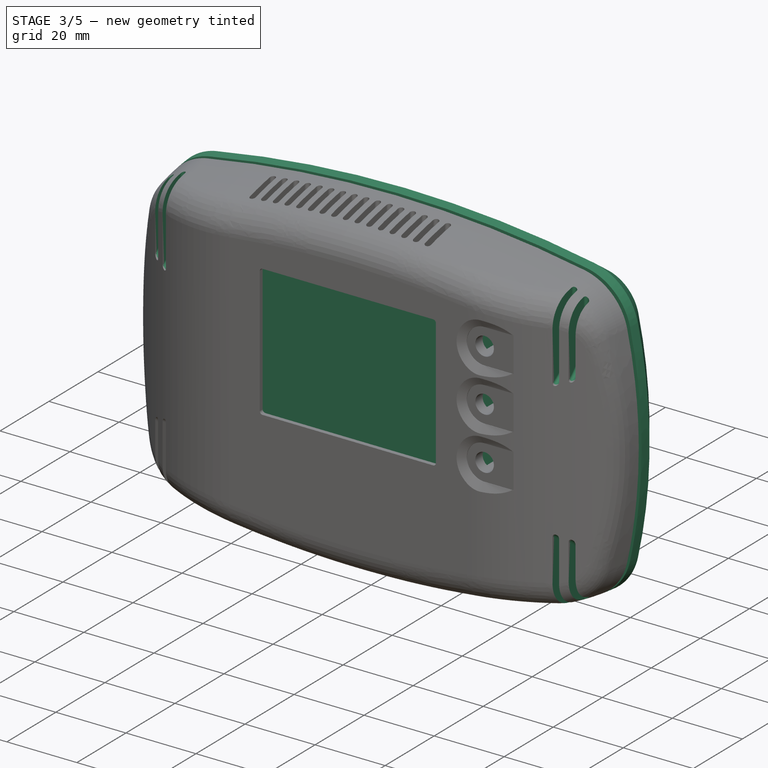
[diagram: stage 3 of 5 — iso view after this stage's code; geometry added in this stage tinted green]
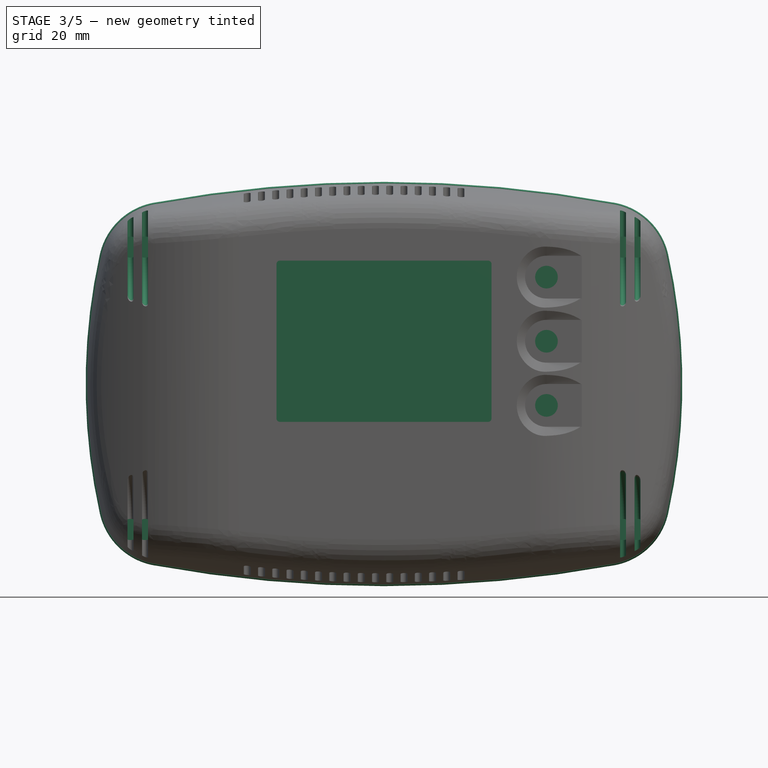
[diagram: stage 3 of 5 — front view after this stage's code; geometry added in this stage tinted green]
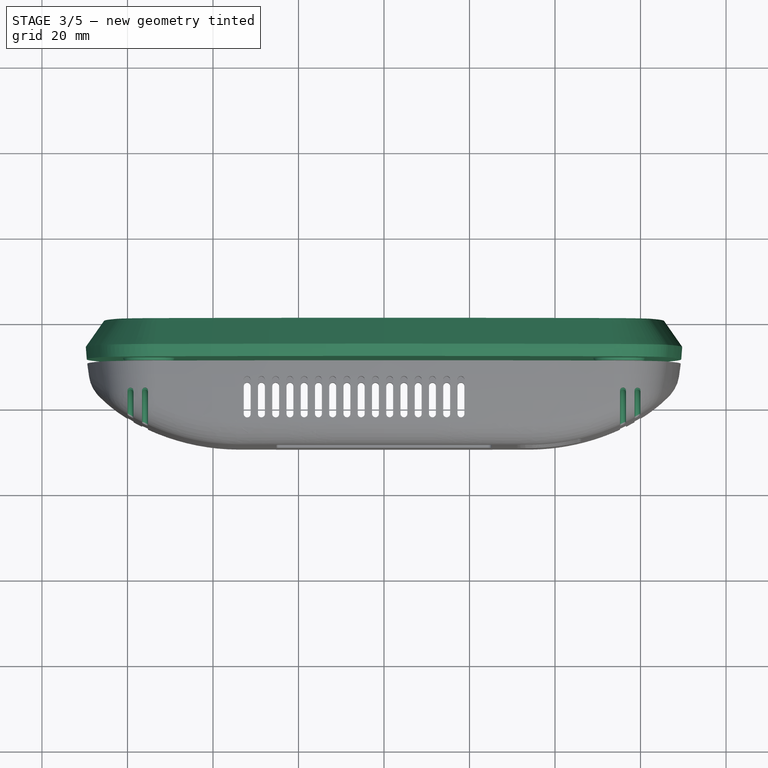
[diagram: stage 3 of 5 — top view after this stage's code; geometry added in this stage tinted green]
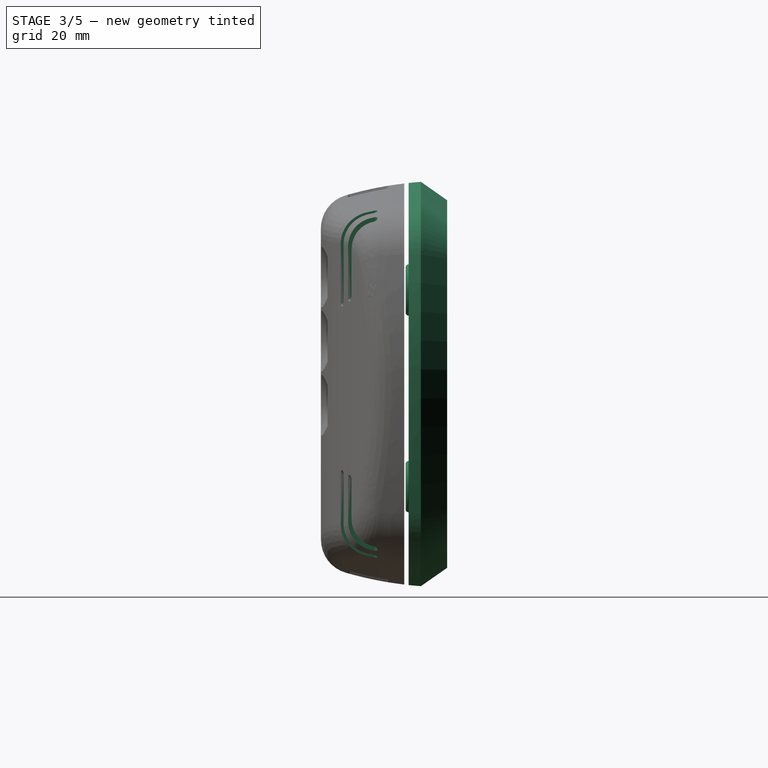
[diagram: stage 3 of 5 — right view after this stage's code; geometry added in this stage tinted green]
FEATURE [Sketcher::SketchObject] Sketch027  label="hb edge trj"
  FullyConstrained = true
  MapMode = 5
  Placement = pos=(0,0,0) rot=(1,0,0;1.5708rad)
  Support = -> [XZ_Plane018]
  sketch-geometry (14):
    g0: ArcOfCircle CenterX=-6.23e-14 CenterY=-252.5 CenterZ=0 NormalX=0 NormalY=0 NormalZ=1 AngleXU=0 Radius=300 StartAngle=1.39005 EndAngle=1.75154
    g1: ArcOfCircle CenterX=3.11e-14 CenterY=252.5 CenterZ=0 NormalX=0 NormalY=0 NormalZ=1 AngleXU=0 Radius=300 StartAngle=4.53164 EndAngle=4.89314
    g2: LineSegment StartX=0 StartY=47.5 StartZ=0 EndX=0 EndY=-47.5 EndZ=0
    g3: ArcOfCircle CenterX=70 CenterY=0 CenterZ=0 NormalX=0 NormalY=0 NormalZ=1 AngleXU=0 Radius=140 StartAngle=2.92314 EndAngle=3.36005
    g4: ArcOfCircle CenterX=-70 CenterY=0 CenterZ=0 NormalX=0 NormalY=0 NormalZ=1 AngleXU=0 Radius=140 StartAngle=6.06473 EndAngle=6.50164
    g5: ArcOfCircle CenterX=51.0529 CenterY=26.8736 CenterZ=0 NormalX=0 NormalY=0 NormalZ=1 AngleXU=0 Radius=16 StartAngle=0.218456 EndAngle=1.39005
    g6: ArcOfCircle CenterX=-51.0529 CenterY=26.8736 CenterZ=0 NormalX=0 NormalY=0 NormalZ=1 AngleXU=0 Radius=16 StartAngle=1.75154 EndAngle=2.92314
    g7: ArcOfCircle CenterX=51.0529 CenterY=-26.8736 CenterZ=0 NormalX=0 NormalY=0 NormalZ=1 AngleXU=0 Radius=16 StartAngle=4.89314 EndAngle=6.06473
    g8: ArcOfCircle CenterX=-51.0529 CenterY=-26.8736 CenterZ=0 NormalX=0 NormalY=0 NormalZ=1 AngleXU=0 Radius=16 StartAngle=3.36005 EndAngle=4.53164
    g9: LineSegment StartX=-51.0529 StartY=26.8736 StartZ=0 EndX=51.0529 EndY=26.8736 EndZ=0
    g10: LineSegment StartX=51.0529 StartY=26.8736 StartZ=0 EndX=51.0529 EndY=-26.8736 EndZ=0
    g11: LineSegment StartX=51.0529 StartY=-26.8736 StartZ=0 EndX=-51.0529 EndY=-26.8736 EndZ=0
    g12: LineSegment StartX=-51.0529 StartY=-26.8736 StartZ=0 EndX=-51.0529 EndY=26.8736 EndZ=0
    g13: LineSegment StartX=-70 StartY=0 StartZ=0 EndX=70 EndY=0 EndZ=0
  constraints (36):
    c: PointOnObject(g2,g0)
    c: PointOnObject(g2,g1)
    c: DistanceY(g2,g2) = 95
    c: Equal(g4,g3)
    c: Equal(g0,g1)
    c: Tangent(g0,g5) = -1.5708
    c: Tangent(g4,g5) = -1.5708
    c: Tangent(g4,g7) = -1.5708
    c: Tangent(g1,g7) = -1.5708
    c: Tangent(g8,g1) = -1.5708
    c: Tangent(g3,g8) = -1.5708
    c: Tangent(g3,g6) = -1.5708
    c: Tangent(g0,g6) = -1.5708
    c: Equal(g6,g5)
    c: Equal(g5,g7)
    c: Equal(g7,g8)
    c: Radius(g5) = 16
    c: Coincident(g9,g10)
    c: Coincident(g10,g11)
    c: Coincident(g11,g12)
    c: Coincident(g12,g9)
    c: Horizontal(g9)
    c: Horizontal(g11)
    c: Coincident(g9,g6)
    c: Coincident(g10,g7)
    c: Coincident(g5,g9)
    c: Coincident(g8,g11)
    c: Radius(g4) = 140
    c: Radius(g0) = 300
    c: Coincident(g13,g4)
    c: Coincident(g13,g3)
    c: PointOnObject(g3,g4)
    c: DistanceY(g3,g-1) = 0
    c: Symmetric(g2,g2,g13)
    c: PointOnObject(g-1,g2)
    c: Symmetric(g5,g6,g2)
FEATURE [Sketcher::SketchObject] Sketch028  label="hb base shape"
  FullyConstrained = true
  MapMode = 5
  Support = -> [XY_Plane018]
  sketch-geometry (6):
    g0: LineSegment StartX=-34 StartY=-29.5 StartZ=0 EndX=34 EndY=-29.5 EndZ=0
    g1: ArcOfCircle CenterX=34 CenterY=21.2813 CenterZ=0 NormalX=0 NormalY=0 NormalZ=1 AngleXU=0 Radius=50.7813 StartAngle=4.71239 EndAngle=5.52869
    g2: ArcOfCircle CenterX=-34 CenterY=21.2813 CenterZ=0 NormalX=0 NormalY=0 NormalZ=1 AngleXU=0 Radius=50.7813 StartAngle=3.89609 EndAngle=4.71239
    g3: LineSegment StartX=-71 StartY=0 StartZ=0 EndX=71 EndY=0 EndZ=0
    g4: LineSegment StartX=71 StartY=0 StartZ=0 EndX=71 EndY=-13.5 EndZ=0
    g5: LineSegment StartX=-71 StartY=-13.5 StartZ=0 EndX=-71 EndY=0 EndZ=0
  constraints (16):
    c: Tangent(g0,g2) = -1.5708
    c: Tangent(g0,g1) = -1.5708
    c: DistanceY(g0,g-1) = 29.5
    c: Coincident(g3,g4)
    c: Coincident(g5,g3)
    c: Horizontal(g3)
    c: Vertical(g4)
    c: Vertical(g5)
    c: PointOnObject(g3,g-1)
    c: Coincident(g4,g1)
    c: Coincident(g2,g5)
    c: Symmetric(g1,g2,g-2)
    c: DistanceX(g0,g0) = 68
    c: Symmetric(g1,g2,g-2)
    c: DistanceX(g3,g3) = 142
    c: DistanceY(g0,g1) = 16
FEATURE [PartDesign::Pad] Pad016  label="HB Base shape"
  Direction = (1,1,1)
  Length = 100
  Length2 = 60
  Midplane = true
  Profile = -> Sketch028
  Type = 0
FEATURE [Sketcher::SketchObject] Sketch029  label="hb edge crs"
  FullyConstrained = true
  MapMode = 5
  Placement = pos=(0,0,0) rot=(0.57735,0.57735,0.57735;2.0944rad)
  Support = -> [YZ_Plane018]
  sketch-geometry (6):
    g0: LineSegment StartX=0 StartY=70 StartZ=0 EndX=-30 EndY=70 EndZ=0
    g1: LineSegment StartX=-30 StartY=70 StartZ=0 EndX=-30 EndY=42.0299 EndZ=0
    g2: LineSegment StartX=0 StartY=43 StartZ=0 EndX=0 EndY=70 EndZ=0
    g3: ArcOfCircle CenterX=0 CenterY=-37.5 CenterZ=0 NormalX=0 NormalY=0 NormalZ=1 AngleXU=0 Radius=85 StartAngle=1.64277 EndAngle=1.93151
    g4: LineSegment StartX=-6.11239 StartY=47.2799 StartZ=0 EndX=0 EndY=43 EndZ=0
    g5: ArcOfCircle CenterX=0 CenterY=-37.5 CenterZ=0 NormalX=0 NormalY=0 NormalZ=1 AngleXU=0 Radius=85 StartAngle=1.5708 EndAngle=1.64277
  constraints (19):
    c: Coincident(g0,g1)
    c: Coincident(g2,g0)
    c: Horizontal(g0)
    c: Vertical(g1)
    c: Vertical(g2)
    c: PointOnObject(g0,g-2)
    c: Coincident(g3,g1)
    c: DistanceX(g1,g-1) = 30
    c: PointOnObject(g3,g-2)
    c: DistanceY(g0) = 70
    c: Radius(g3) = 85
    c: Coincident(g4,g3)
    c: Coincident(g5,g3)
    c: Coincident(g5,g3)
    c: PointOnObject(g5,g-2)
    c: DistanceY(g5) = 47.5
    c: Coincident(g2,g4)
    c: Angle(g2,g4) = 0.959931
    c: DistanceY(g2,g5) = 4.5
FEATURE [PartDesign::SubtractivePipe] SubtractivePipe  label="HB Edge"
  AuxilleryCurvelinear = true
  AuxillerySpineTangent = false
  BaseFeature = -> Pad016
  Binormal = (0,0,0)
  Mode = 0
  Profile = -> Sketch029
  Spine = -> Sketch027
  SpineTangent = false
  Transformation = 0
  Transition = 0
FEATURE [PartDesign::Fillet] Fillet  label="HB Base fillet"
  Base = -> SubtractivePipe [Edge10]
  BaseFeature = -> SubtractivePipe
  Radius = 8
  SupportTransform = false
FEATURE [Sketcher::SketchObject] Sketch031  label="hb cable cavity"
  AttachmentOffset = pos=(0,0,25) rot=(0,0,1;0rad)
  FullyConstrained = true
  MapMode = 5
  Placement = pos=(0,-25,-5.6e-15) rot=(1,0,0;1.5708rad)
  Support = -> [XZ_Plane018]
  sketch-geometry (13):
    g0: ArcOfCircle CenterX=3.7e-15 CenterY=-102 CenterZ=0 NormalX=0 NormalY=0 NormalZ=1 AngleXU=0 Radius=140 StartAngle=1.3467 EndAngle=1.79489
    g1: LineSegment StartX=35 StartY=29.6245 StartZ=0 EndX=35 EndY=-2 EndZ=0
    g2: LineSegment StartX=30 StartY=-7 StartZ=0 EndX=-30 EndY=-7 EndZ=0
    g3: LineSegment StartX=-35 StartY=-2 StartZ=0 EndX=-35 EndY=29.6245 EndZ=0
    g4: GeomPoint X=0 Y=38 Z=0
    g5: ArcOfCircle CenterX=-30 CenterY=29.6245 CenterZ=0 NormalX=0 NormalY=0 NormalZ=1 AngleXU=0 Radius=5 StartAngle=1.79489 EndAngle=3.14159
    g6: ArcOfCircle CenterX=-30 CenterY=-2 CenterZ=0 NormalX=0 NormalY=0 NormalZ=1 AngleXU=0 Radius=5 StartAngle=3.14159 EndAngle=4.71239
    g7: ArcOfCircle CenterX=30 CenterY=-2 CenterZ=0 NormalX=0 NormalY=0 NormalZ=1 AngleXU=0 Radius=5 StartAngle=4.71239 EndAngle=6.28319
    g8: ArcOfCircle CenterX=30 CenterY=29.6245 CenterZ=0 NormalX=0 NormalY=0 NormalZ=1 AngleXU=0 Radius=5 StartAngle=0 EndAngle=1.3467
    g9: LineSegment StartX=30 StartY=29.6245 StartZ=0 EndX=-30 EndY=29.6245 EndZ=0
    g10: LineSegment StartX=-30 StartY=29.6245 StartZ=0 EndX=-30 EndY=-2 EndZ=0
    g11: LineSegment StartX=-30 StartY=-2 StartZ=0 EndX=30 EndY=-2 EndZ=0
    g12: LineSegment StartX=30 StartY=-2 StartZ=0 EndX=30 EndY=29.6245 EndZ=0
  constraints (30):
    c: Horizontal(g2)
    c: Vertical(g1)
    c: Vertical(g3)
    c: PointOnObject(g4,g0)
    c: PointOnObject(g4,g-2)
    c: DistanceY(g4) = 38
    c: Radius(g0) = 140
    c: Tangent(g0,g5) = -1.5708
    c: Tangent(g3,g5) = 1.5708
    c: Tangent(g2,g6) = 1.5708
    c: Tangent(g3,g6) = 1.5708
    c: Tangent(g2,g7) = 1.5708
    c: Tangent(g1,g7) = 1.5708
    c: Tangent(g1,g8) = 1.5708
    c: Tangent(g0,g8) = -1.5708
    c: Coincident(g9,g10)
    c: Coincident(g10,g11)
    c: Coincident(g11,g12)
    c: Coincident(g12,g9)
    c: Horizontal(g11)
    c: Vertical(g10)
    c: Vertical(g12)
    c: Coincident(g9,g8)
    c: Coincident(g10,g6)
    c: Coincident(g5,g9)
    c: Symmetric(g5,g8,g-2)
    c: Coincident(g7,g11)
    c: DistanceX(g3,g1) = 70
    c: DistanceY(g2,g-1) = 7
    c: Radius(g7) = 5
FEATURE [PartDesign::Plane] DatumPlane  label="hb sensor mirror plane"
  AttachmentOffset = pos=(0,0,-1) rot=(0,0,1;0rad)
  Length = 156.267
  MapMode = 5
  Placement = pos=(0,0,-1) rot=(0,0,1;0rad)
  ResizeMode = 0
  Support = -> [XY_Plane018]
  Width = 66.7069
FEATURE [Sketcher::SketchObject] Sketch068  label="hb magnet pocket"
  AttachmentOffset = pos=(0,0,-55) rot=(0,0,1;0rad)
  FullyConstrained = true
  MapMode = 5
  Placement = pos=(-55,1.22e-14,-1.22e-14) rot=(0.57735,0.57735,0.57735;2.0944rad)
  Support = -> [YZ_Plane018]
  sketch-geometry (5):
    g0: LineSegment StartX=-9 StartY=27.15 StartZ=0 EndX=-3.2 EndY=27.15 EndZ=0
    g1: LineSegment StartX=-3.2 StartY=27.15 StartZ=0 EndX=-3.2 EndY=22 EndZ=0
    g2: LineSegment StartX=-3.2 StartY=22 StartZ=0 EndX=-9 EndY=22 EndZ=0
    g3: LineSegment StartX=-9 StartY=22 StartZ=0 EndX=-9 EndY=27.15 EndZ=0
    g4: LineSegment StartX=-3.2 StartY=22 StartZ=0 EndX=1.95 EndY=22 EndZ=0
  constraints (15):
    c: Coincident(g0,g1)
    c: Coincident(g1,g2)
    c: Coincident(g2,g3)
    c: Coincident(g3,g0)
    c: Horizontal(g0)
    c: Horizontal(g2)
    c: Vertical(g1)
    c: Vertical(g3)
    c: Coincident(g4,g1)
    c: Horizontal(g4)
    c: DistanceY(g2) = 22
    c: DistanceY(g3,g3) = 5.15
    c: Equal(g4,g1)
    c: DistanceX(g0,g-1) = 9
    c: DistanceX(g0,g0) = 5.8
FEATURE [PartDesign::Mirrored] Mirrored011
  MirrorPlane = -> DatumPlane
FEATURE [PartDesign::Mirrored] Mirrored012
  MirrorPlane = -> YZ_Plane018
FEATURE [Sketcher::SketchObject] Sketch069  label="hb separation top bottom"
  FullyConstrained = true
  MapMode = 5
  Placement = pos=(0,0,0) rot=(0.57735,0.57735,0.57735;2.0944rad)
  Support = -> [YZ_Plane018]
  sketch-geometry (4):
    g0: LineSegment StartX=-9 StartY=60 StartZ=0 EndX=-59 EndY=60 EndZ=0
    g1: LineSegment StartX=-59 StartY=60 StartZ=0 EndX=-59 EndY=-60 EndZ=0
    g2: LineSegment StartX=-59 StartY=-60 StartZ=0 EndX=-9 EndY=-60 EndZ=0
    g3: LineSegment StartX=-9 StartY=-60 StartZ=0 EndX=-9 EndY=60 EndZ=0
  constraints (11):
    c: Coincident(g0,g1)
    c: Coincident(g1,g2)
    c: Coincident(g2,g3)
    c: Coincident(g3,g0)
    c: Horizontal(g0)
    c: Horizontal(g2)
    c: Vertical(g1)
    c: DistanceX(g0,g-1) = 9
    c: DistanceX(g0,g0) = 50
    c: Symmetric(g0,g2,g-1)
    c: DistanceY(g3,g3) = 120
FEATURE [PartDesign::Pocket] Pocket009  label="HB Separation top bottom"
  BaseFeature = -> Fillet
  Length = 5
  Length2 = 100
  Midplane = true
  Profile = -> Sketch069
  Type = 1
FEATURE [Sketcher::SketchObject] Sketch084  label="hb Rim top bottom"
  FullyConstrained = true
  MapMode = 5
  Placement = pos=(0,0,0) rot=(0.57735,0.57735,0.57735;2.0944rad)
  Support = -> [YZ_Plane018]
  sketch-geometry (5):
    g0: LineSegment StartX=-8.5 StartY=45.3321 StartZ=0 EndX=-11.5 EndY=43.6 EndZ=0
    g1: LineSegment StartX=-11.5 StartY=43.6 StartZ=0 EndX=-11.5 EndY=42.4 EndZ=0
    g2: LineSegment StartX=-11.5 StartY=42.4 StartZ=0 EndX=-8.5 EndY=40.6679 EndZ=0
    g3: LineSegment StartX=-8.5 StartY=40.6679 StartZ=0 EndX=-8.5 EndY=45.3321 EndZ=0
    g4: LineSegment StartX=-11.5 StartY=43 StartZ=0 EndX=-8.5 EndY=43 EndZ=0
  constraints (14):
    c: Coincident(g0,g1)
    c: Vertical(g1)
    c: Coincident(g1,g2)
    c: Coincident(g2,g3)
    c: Coincident(g3,g0)
    c: DistanceX(g0,g-1) = 8.5
    c: DistanceX(g0,g-1) = 11.5
    c: PointOnObject(g4,g1)
    c: PointOnObject(g4,g3)
    c: Symmetric(g2,g0,g4)
    c: Symmetric(g1,g0,g4)
    c: DistanceY(g1,g1) = 1.2
    c: Angle(g2,g0) = 1.0472
    c: DistanceY(g4) = 43
FEATURE [Sketcher::SketchObject] Sketch085  label="hb inner slit screw right"
  FullyConstrained = true
  MapMode = 5
  Placement = pos=(0,0,0) rot=(1,0,0;1.5708rad)
  Support = -> [XZ_Plane018]
  sketch-geometry (4):
    g0: ArcOfCircle CenterX=50 CenterY=11 CenterZ=0 NormalX=0 NormalY=0 NormalZ=1 AngleXU=0 Radius=4.7 StartAngle=0 EndAngle=3.14159
    g1: ArcOfCircle CenterX=50 CenterY=-11 CenterZ=0 NormalX=0 NormalY=0 NormalZ=1 AngleXU=0 Radius=4.7 StartAngle=3.14159 EndAngle=6.28319
    g2: LineSegment StartX=45.3 StartY=11 StartZ=0 EndX=45.3 EndY=-11 EndZ=0
    g3: LineSegment StartX=54.7 StartY=11 StartZ=0 EndX=54.7 EndY=-11 EndZ=0
  constraints (9):
    c: Tangent(g0,g3) = 1.5708
    c: Tangent(g0,g2) = -1.5708
    c: Tangent(g2,g1) = -1.5708
    c: Tangent(g3,g1) = 1.5708
    c: Vertical(g2)
    c: DistanceX(g0) = 50
    c: Radius(g0) = 4.7
    c: Symmetric(g1,g0,g-1)
    c: DistanceY(g1,g0) = 22
FEATURE [Sketcher::SketchObject] Sketch086  label="hb outer slit screw right"
  AttachmentOffset = pos=(0,0,3) rot=(0,0,1;0rad)
  ExternalGeometry = -> [Sketch085]
  FullyConstrained = true
  MapMode = 5
  Placement = pos=(0,-3,-7e-16) rot=(1,0,0;1.5708rad)
  Support = -> [XZ_Plane018]
  sketch-geometry (4):
    g0: ArcOfCircle CenterX=50 CenterY=11 CenterZ=0 NormalX=0 NormalY=0 NormalZ=1 AngleXU=0 Radius=7.2 StartAngle=-2.79465e-11 EndAngle=3.14159
    g1: ArcOfCircle CenterX=50 CenterY=-11 CenterZ=0 NormalX=0 NormalY=0 NormalZ=1 AngleXU=0 Radius=7.2 StartAngle=3.14159 EndAngle=6.28319
    g2: LineSegment StartX=42.8 StartY=11 StartZ=0 EndX=42.8 EndY=-11 EndZ=0
    g3: LineSegment StartX=57.2 StartY=11 StartZ=0 EndX=57.2 EndY=-11 EndZ=0
  constraints (8):
    c: Tangent(g0,g3) = 1.5708
    c: Tangent(g0,g2) = -1.5708
    c: Tangent(g2,g1) = -1.5708
    c: Tangent(g3,g1) = 1.5708
    c: Vertical(g2)
    c: Coincident(g1,g-4)
    c: Coincident(g0,g-3)
    c: Radius(g0) = 7.2
FEATURE [Sketcher::SketchObject] Sketch088  label="hb inner slit screw left"
  FullyConstrained = true
  MapMode = 5
  Placement = pos=(0,0,0) rot=(1,0,0;1.5708rad)
  Support = -> [XZ_Plane018]
  sketch-geometry (5):
    g0: ArcOfCircle CenterX=-56 CenterY=0 CenterZ=0 NormalX=0 NormalY=0 NormalZ=1 AngleXU=0 Radius=4.7 StartAngle=1.5708 EndAngle=4.71239
    g1: ArcOfCircle CenterX=-44 CenterY=2e-16 CenterZ=0 NormalX=0 NormalY=0 NormalZ=1 AngleXU=0 Radius=4.7 StartAngle=4.71239 EndAngle=7.85398
    g2: LineSegment StartX=-56 StartY=-4.7 StartZ=0 EndX=-44 EndY=-4.7 EndZ=0
    g3: LineSegment StartX=-56 StartY=4.7 StartZ=0 EndX=-44 EndY=4.7 EndZ=0
    g4: LineSegment StartX=-50 StartY=4.7 StartZ=0 EndX=-50 EndY=-4.7 EndZ=0
  constraints (13):
    c: Tangent(g0,g3) = 1.5708
    c: Tangent(g0,g2) = -1.5708
    c: Tangent(g2,g1) = -1.5708
    c: Tangent(g3,g1) = 1.5708
    c: Horizontal(g2)
    c: Equal(g0,g1)
    c: PointOnObject(g0,g-1)
    c: PointOnObject(g4,g3)
    c: PointOnObject(g4,g2)
    c: Symmetric(g1,g0,g4)
    c: DistanceX(g4,g-1) = 50
    c: Radius(g1) = 4.7
    c: DistanceX(g3,g3) = 12
FEATURE [Sketcher::SketchObject] Sketch087  label="hb outer slit screw left"
  AttachmentOffset = pos=(0,0,3) rot=(0,0,1;0rad)
  ExternalGeometry = -> [Sketch088]
  FullyConstrained = true
  MapMode = 5
  Placement = pos=(0,-3,-7e-16) rot=(1,0,0;1.5708rad)
  Support = -> [XZ_Plane018]
  sketch-geometry (4):
    g0: ArcOfCircle CenterX=-56 CenterY=0 CenterZ=0 NormalX=0 NormalY=0 NormalZ=1 AngleXU=0 Radius=7.2 StartAngle=1.5708 EndAngle=4.71239
    g1: ArcOfCircle CenterX=-44 CenterY=2e-16 CenterZ=0 NormalX=0 NormalY=0 NormalZ=1 AngleXU=0 Radius=7.2 StartAngle=4.71239 EndAngle=7.85398
    g2: LineSegment StartX=-56 StartY=-7.2 StartZ=0 EndX=-44 EndY=-7.2 EndZ=0
    g3: LineSegment StartX=-56 StartY=7.2 StartZ=0 EndX=-44 EndY=7.2 EndZ=0
  constraints (8):
    c: Tangent(g0,g3) = 1.5708
    c: Tangent(g0,g2) = -1.5708
    c: Tangent(g2,g1) = -1.5708
    c: Tangent(g3,g1) = 1.5708
    c: Horizontal(g2)
    c: Coincident(g0,g-3)
    c: Coincident(g1,g-4)
    c: Radius(g1) = 7.2
FEATURE [Sketcher::SketchObject] Sketch089
  AttachmentOffset = pos=(0,0,9) rot=(0,0,1;0rad)
  FullyConstrained = true
  MapMode = 5
  Placement = pos=(0,-9,-2e-15) rot=(1,0,0;1.5708rad)
  Support = -> [XZ_Plane018]
  sketch-geometry (10):
    g0: LineSegment StartX=-10 StartY=-13.453 StartZ=0 EndX=-20 EndY=-30.7735 EndZ=0
    g1: LineSegment StartX=-20 StartY=-30.7735 StartZ=0 EndX=0 EndY=-30.7735 EndZ=0
    g2: LineSegment StartX=0 StartY=-30.7735 StartZ=0 EndX=-10 EndY=-13.453 EndZ=0
    g3: Circle CenterX=-10 CenterY=-25 CenterZ=0 NormalX=0 NormalY=0 NormalZ=1 AngleXU=0 Radius=11.547
    g4: ArcOfCircle CenterX=-10 CenterY=-13.453 CenterZ=0 NormalX=0 NormalY=0 NormalZ=1 AngleXU=0 Radius=2 StartAngle=0.995461 EndAngle=2.14613
    g5: ArcOfCircle CenterX=-20 CenterY=-30.7735 CenterZ=0 NormalX=0 NormalY=0 NormalZ=1 AngleXU=0 Radius=2 StartAngle=3.08986 EndAngle=4.24053
    g6: ArcOfCircle CenterX=0 CenterY=-30.7735 CenterZ=0 NormalX=0 NormalY=0 NormalZ=1 AngleXU=0 Radius=2 StartAngle=5.18425 EndAngle=6.33492
    g7: ArcOfCircle CenterX=1.97056 CenterY=-31.9112 CenterZ=0 NormalX=0 NormalY=0 NormalZ=1 AngleXU=0 Radius=24 StartAngle=2.14613 EndAngle=3.08986
    g8: ArcOfCircle CenterX=-10 CenterY=-11.1776 CenterZ=0 NormalX=0 NormalY=0 NormalZ=1 AngleXU=0 Radius=24 StartAngle=4.24053 EndAngle=5.18425
    g9: ArcOfCircle CenterX=-21.9706 CenterY=-31.9112 CenterZ=0 NormalX=0 NormalY=0 NormalZ=1 AngleXU=0 Radius=24 StartAngle=0.0517369 EndAngle=0.995461
  constraints (27):
    c: Coincident(g0,g1)
    c: Coincident(g1,g2)
    c: Coincident(g2,g0)
    c: Equal(g0,g1)
    c: Equal(g0,g2)
    c: PointOnObject(g0,g3)
    c: PointOnObject(g1,g3)
    c: PointOnObject(g2,g3)
    c: Coincident(g1,g6)
    c: Coincident(g0,g5)
    c: Coincident(g0,g4)
    c: Equal(g4,g6)
    c: Equal(g6,g5)
    c: Tangent(g4,g9) = -1.5708
    c: Tangent(g4,g7) = -1.5708
    c: Tangent(g5,g7) = -1.5708
    c: Tangent(g5,g8) = -1.5708
    c: Tangent(g6,g8) = -1.5708
    c: Tangent(g6,g9) = -1.5708
    c: Equal(g9,g7)
    c: Equal(g7,g8)
    c: DistanceX(g1,g1) = 20
    c: Radius(g6) = 2
    c: Radius(g8) = 24
    c: DistanceY(g3,g-1) = 25
    c: Horizontal(g1)
    c: DistanceX(g4,g-1) = 10
FEATURE [Sketcher::SketchObject] Sketch090
  AttachmentOffset = pos=(0,0,7) rot=(0,0,1;0rad)
  FullyConstrained = true
  MapMode = 5
  Placement = pos=(0,-7,-1.6e-15) rot=(1,0,0;1.5708rad)
  Support = -> [XZ_Plane018]
  sketch-geometry (10):
    g0: LineSegment StartX=-10 StartY=-14.6077 StartZ=0 EndX=-19 EndY=-30.1962 EndZ=0
    g1: LineSegment StartX=-19 StartY=-30.1962 StartZ=0 EndX=-1 EndY=-30.1962 EndZ=0
    g2: LineSegment StartX=-1 StartY=-30.1962 StartZ=0 EndX=-10 EndY=-14.6077 EndZ=0
    g3: Circle CenterX=-10 CenterY=-25 CenterZ=0 NormalX=0 NormalY=0 NormalZ=1 AngleXU=0 Radius=10.3923
    g4: ArcOfCircle CenterX=-10 CenterY=-14.6077 CenterZ=0 NormalX=0 NormalY=0 NormalZ=1 AngleXU=0 Radius=0.5 StartAngle=0.63705 EndAngle=2.50454
    g5: ArcOfCircle CenterX=-19 CenterY=-30.1962 CenterZ=0 NormalX=0 NormalY=0 NormalZ=1 AngleXU=0 Radius=0.5 StartAngle=2.73144 EndAngle=4.59894
    g6: ArcOfCircle CenterX=-1 CenterY=-30.1962 CenterZ=0 NormalX=0 NormalY=0 NormalZ=1 AngleXU=0 Radius=0.5 StartAngle=4.82584 EndAngle=6.69333
    g7: ArcOfCircle CenterX=53.9064 CenterY=-61.8964 CenterZ=0 NormalX=0 NormalY=0 NormalZ=1 AngleXU=0 Radius=80 StartAngle=2.50454 EndAngle=2.73144
    g8: ArcOfCircle CenterX=-10 CenterY=48.7928 CenterZ=0 NormalX=0 NormalY=0 NormalZ=1 AngleXU=0 Radius=80 StartAngle=4.59894 EndAngle=4.82584
    g9: ArcOfCircle CenterX=-73.9064 CenterY=-61.8964 CenterZ=0 NormalX=0 NormalY=0 NormalZ=1 AngleXU=0 Radius=80 StartAngle=0.410148 EndAngle=0.63705
  constraints (27):
    c: Coincident(g0,g1)
    c: Coincident(g1,g2)
    c: Coincident(g2,g0)
    c: Equal(g0,g1)
    c: Equal(g0,g2)
    c: PointOnObject(g0,g3)
    c: PointOnObject(g1,g3)
    c: Coincident(g1,g6)
    c: Coincident(g0,g5)
    c: Coincident(g0,g4)
    c: Equal(g4,g6)
    c: Equal(g6,g5)
    c: Tangent(g4,g9) = -1.5708
    c: Tangent(g4,g7) = -1.5708
    c: Tangent(g5,g7) = -1.5708
    c: Tangent(g5,g8) = -1.5708
    c: Tangent(g6,g8) = -1.5708
    c: Tangent(g6,g9) = -1.5708
    c: Equal(g9,g7)
    c: Equal(g7,g8)
    c: DistanceX(g1,g1) = 18
    c: Radius(g6) = 0.5
    c: Radius(g8) = 80
    c: DistanceY(g3,g-1) = 25
    c: PointOnObject(g4,g3)
    c: Horizontal(g1)
    c: DistanceX(g4,g-1) = 10
FEATURE [Sketcher::SketchObject] Sketch101
  AttachmentOffset = pos=(0,0,-55) rot=(0,0,1;0rad)
  FullyConstrained = true
  MapMode = 5
  Placement = pos=(-55,1.22e-14,-1.22e-14) rot=(0.57735,0.57735,0.57735;2.0944rad)
  Support = -> [YZ_Plane018]
  sketch-geometry (6):
    g0: LineSegment StartX=-9 StartY=28 StartZ=0 EndX=-1 EndY=28 EndZ=0
    g1: LineSegment StartX=-1 StartY=28 StartZ=0 EndX=-1 EndY=22 EndZ=0
    g2: LineSegment StartX=-1 StartY=22 StartZ=0 EndX=-9.7 EndY=22 EndZ=0
    g3: LineSegment StartX=-9.7 StartY=22 StartZ=0 EndX=-9.7 EndY=27.3 EndZ=0
    g4: ArcOfCircle CenterX=-9 CenterY=27.3 CenterZ=0 NormalX=0 NormalY=0 NormalZ=1 AngleXU=0 Radius=0.7 StartAngle=1.5708 EndAngle=3.14159
    g5: LineSegment StartX=-9.7 StartY=22 StartZ=0 EndX=-15 EndY=22 EndZ=0
  constraints (17):
    c: Coincident(g0,g1)
    c: Coincident(g1,g2)
    c: Coincident(g2,g3)
    c: Horizontal(g0)
    c: Horizontal(g2)
    c: Vertical(g1)
    c: Vertical(g3)
    c: DistanceX(g1,g-1) = 1
    c: DistanceY(g1) = 22
    c: Tangent(g0,g4) = 1.5708
    c: Tangent(g3,g4) = 1.5708
    c: DistanceX(g0,g-1) = 9
    c: DistanceX(g3,g-1) = 9.7
    c: DistanceY(g1,g1) = 6
    c: Coincident(g5,g2)
    c: Horizontal(g5)
    c: Equal(g3,g5)
FEATURE [PartDesign::Revolution] Revolution  label="HB Magnet island"
  Angle = 360
  Axis = (-1.8e-15,-5.3,1.2e-15)
  Base = (-55,-9.7,22)
  BaseFeature = -> Pocket009
  Profile = -> Sketch101
  ReferenceAxis = -> Sketch101 [Axis0]
  Reversed = true
FEATURE [PartDesign::Groove] Groove001  label="HB Magnet pocket"
  Angle = 360
  Axis = (1.7e-15,5.15,-1.1e-15)
  Base = (-55,-3.2,22)
  BaseFeature = -> Revolution
  Profile = -> Sketch068
  ReferenceAxis = -> Sketch068 [Axis0]
  Reversed = true
FEATURE [PartDesign::MultiTransform] MultiTransform002  label="HB Other magnet pockets"
  BaseFeature = -> Groove001
  Originals = -> [Revolution,Groove001]
  Transformations = -> [Mirrored011,Mirrored012]
FEATURE [PartDesign::MultiTransform] MultiTransform004  label="HT Other sensors"
  BaseFeature = -> SubtractivePipe004
  Originals = -> [Pocket023,SubtractivePipe004]
  Transformations = -> [Mirrored017,Mirrored018]
FEATURE [Sketcher::SketchObject] Sketch131  label="ht notch for PCB"
  FullyConstrained = true
  MapMode = 5
  Support = -> [XY_Plane043]
  sketch-geometry (5):
    g0: LineSegment StartX=-47 StartY=-17.9 StartZ=0 EndX=-49.5 EndY=-17.9 EndZ=0
    g1: LineSegment StartX=-49.5 StartY=-17.9 StartZ=0 EndX=-49.5 EndY=-19.7 EndZ=0
    g2: LineSegment StartX=-49.5 StartY=-19.7 StartZ=0 EndX=-44 EndY=-19.7 EndZ=0
    g3: LineSegment StartX=-44 StartY=-19.7 StartZ=0 EndX=-44 EndY=-16.1679 EndZ=0
    g4: LineSegment StartX=-44 StartY=-16.1679 StartZ=0 EndX=-47 EndY=-17.9 EndZ=0
  constraints (15):
    c: Coincident(g0,g1)
    c: Coincident(g1,g2)
    c: Coincident(g2,g3)
    c: Horizontal(g0)
    c: Horizontal(g2)
    c: Vertical(g1)
    c: Vertical(g3)
    c: Coincident(g0,g4)
    c: Coincident(g4,g3)
    c: DistanceY(g0,g-1) = 17.9
    c: DistanceX(g0,g-1) = 47
    c: Angle(g4,g0) = 2.61799
    c: DistanceX(g4,g4) = 3
    c: DistanceY(g1,g-1) = 19.7
    c: DistanceX(g0,g-1) = 49.5
FEATURE [PartDesign::Pocket] Pocket024  label="HT Notch for PCB"
  BaseFeature = -> MultiTransform004
  Length = 7
  Length2 = 100
  Midplane = true
  Profile = -> Sketch131
  Type = 0
FEATURE [Sketcher::SketchObject] Sketch132  label="ht pocket for IsoTherm"
  AttachmentOffset = pos=(0,0,27) rot=(0,0,1;0rad)
  FullyConstrained = true
  MapMode = 5
  Placement = pos=(0,-27,-6e-15) rot=(1,0,0;1.5708rad)
  Support = -> [XZ_Plane043]
  sketch-geometry (12):
    g0: LineSegment StartX=4 StartY=-11 StartZ=0 EndX=39 EndY=-11 EndZ=0
    g1: LineSegment StartX=40 StartY=-12 StartZ=0 EndX=40 EndY=-38 EndZ=0
    g2: LineSegment StartX=39 StartY=-39 StartZ=0 EndX=4 EndY=-39 EndZ=0
    g3: LineSegment StartX=3 StartY=-38 StartZ=0 EndX=3 EndY=-12 EndZ=0
    g4: LineSegment StartX=4 StartY=-12 StartZ=0 EndX=39 EndY=-12 EndZ=0
    g5: LineSegment StartX=39 StartY=-12 StartZ=0 EndX=39 EndY=-38 EndZ=0
    g6: LineSegment StartX=39 StartY=-38 StartZ=0 EndX=4 EndY=-38 EndZ=0
    g7: LineSegment StartX=4 StartY=-38 StartZ=0 EndX=4 EndY=-12 EndZ=0
    g8: ArcOfCircle CenterX=39 CenterY=-12 CenterZ=0 NormalX=0 NormalY=0 NormalZ=1 AngleXU=0 Radius=1 StartAngle=7e-16 EndAngle=1.5708
    g9: ArcOfCircle CenterX=4 CenterY=-12 CenterZ=0 NormalX=0 NormalY=0 NormalZ=1 AngleXU=0 Radius=1 StartAngle=1.5708 EndAngle=3.14159
    g10: ArcOfCircle CenterX=4 CenterY=-38 CenterZ=0 NormalX=0 NormalY=0 NormalZ=1 AngleXU=0 Radius=1 StartAngle=3.14159 EndAngle=4.71239
    g11: ArcOfCircle CenterX=39 CenterY=-38 CenterZ=0 NormalX=0 NormalY=0 NormalZ=1 AngleXU=0 Radius=1 StartAngle=4.71239 EndAngle=6.28319
  constraints (28):
    c: Horizontal(g0)
    c: Horizontal(g2)
    c: Vertical(g1)
    c: Vertical(g3)
    c: Coincident(g4,g5)
    c: Coincident(g5,g6)
    c: Coincident(g6,g7)
    c: Coincident(g7,g4)
    c: Horizontal(g4)
    c: Horizontal(g6)
    c: Vertical(g5)
    c: DistanceX(g4) = 4
    c: DistanceX(g4) = 39
    c: DistanceY(g4,g-1) = 12
    c: DistanceY(g5,g-1) = 38
    c: Tangent(g0,g8) = 1.5708
    c: Tangent(g1,g8) = 1.5708
    c: Tangent(g3,g9) = 1.5708
    c: Tangent(g0,g9) = 1.5708
    c: Tangent(g2,g10) = 1.5708
    c: Tangent(g3,g10) = 1.5708
    c: Tangent(g2,g11) = 1.5708
    c: Tangent(g1,g11) = 1.5708
    c: Coincident(g5,g11)
    c: Coincident(g4,g8)
    c: Coincident(g4,g9)
    c: Coincident(g6,g10)
    c: Radius(g8) = 1
FEATURE [PartDesign::Pocket] Pocket025  label="HT Pocket for IsoTherm"
  BaseFeature = -> Pocket024
  Length = 5
  Length2 = 100
  Profile = -> Sketch132
  Type = 1
FEATURE [PartDesign::Body] Body038  label="Housing Top"
  Group = -> [Sketch071,Sketch070,Pad025,Sketch072,SubtractivePipe001,Fillet002,Sketch073,DatumPlane001,Sketch077,Groove003,MultiTransform003,Mirrored016,Mirrored014,Sketch078,Sketch079,Pocket011,Pocket010,Pocket013,Sketch080,Pocket014,Sketch081,Pocket015,Sketch082,Pocket016,Sketch083,SubtractivePipe002,Sketch091,Groove,Sketch092,Pocket021,Sketch093,Sketch094,Sketch095,Sketch096,Sketch097,Sketch098,+19 more]
  Origin = -> Origin043
  Tip = -> Pocket025
FEATURE [TechDraw::DrawSVGTemplate] Template
  EditableTexts = Designed_by_Name=Designed by Name; Drawing_number=Drawing number; FC-Date=Date; FC-SC=Scale; FC-SH=Sheet; FC-Title=Title; Subtitle=Subtitle; Weight=Weight
  Height = 210
  Orientation = 1
  Width = 297
FEATURE [TechDraw::DrawProjGroupItem] ProjItem  label="Front"
  CoarseView = false
  Direction = (0,-1,0)
  Focus = 100
  HardHidden = false
  IsoCount = 0
  IsoHidden = false
  IsoVisible = false
  LockPosition = true
  Perspective = false
  Rotation = 0
  RotationVector = (1,0,0)
  ScaleType = 2
  SeamHidden = false
  SeamVisible = true
  SmoothHidden = false
  SmoothVisible = true
  Source = -> [Compound,Screw,Screw001,Screw002,Body017,Body038]
  Type = 0
  X = 0
  XDirection = (1,0,0)
  Y = 0
FEATURE [TechDraw::DrawProjGroup] ProjGroup
  Anchor = -> ProjItem
  AutoDistribute = true
  LockPosition = false
  ProjectionType = 0
  Rotation = 0
  ScaleType = 0
  Source = -> [Compound,Screw,Screw001,Screw002,Body017,Body038]
  Views = -> [ProjItem]
  X = 143.969
  Y = 131.052
  spacingX = 15
  spacingY = 15
FEATURE [TechDraw::DrawPage] Page
  KeepUpdated = true
  NextBalloonIndex = 1
  ProjectionType = 0
  Template = -> Template
  Views = -> [ProjGroup]
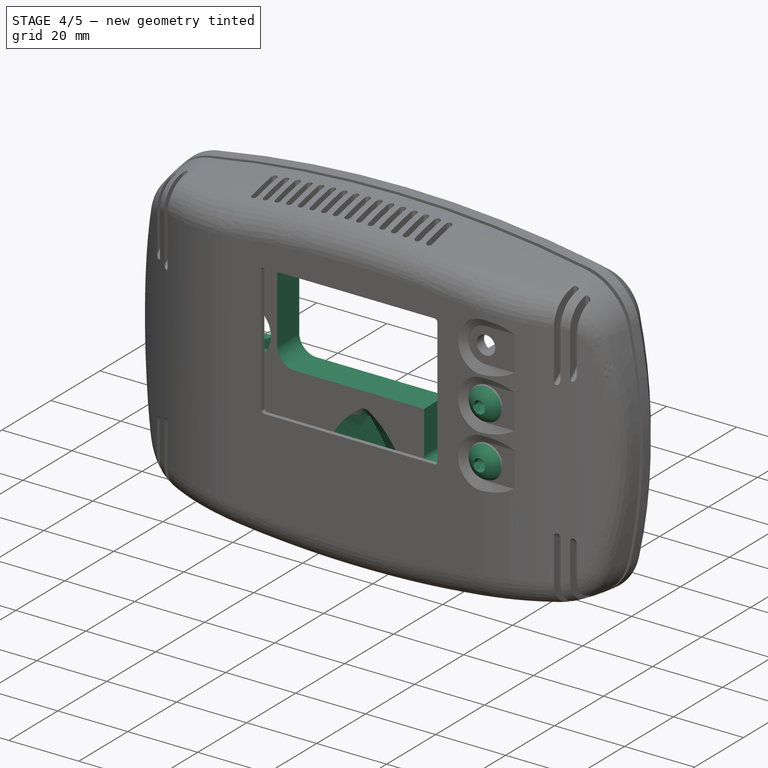
[diagram: stage 4 of 5 — iso view after this stage's code; geometry added in this stage tinted green]
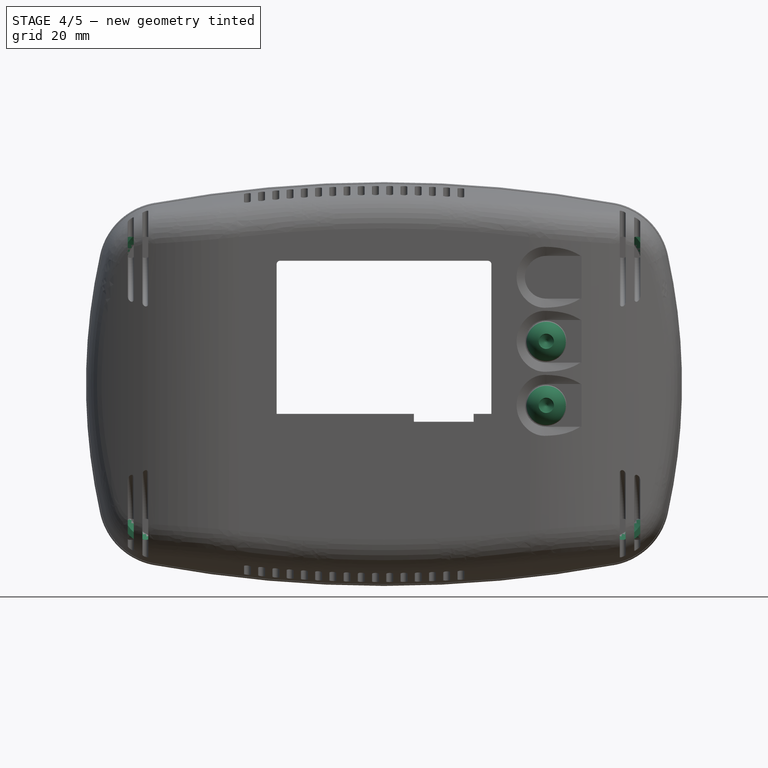
[diagram: stage 4 of 5 — front view after this stage's code; geometry added in this stage tinted green]
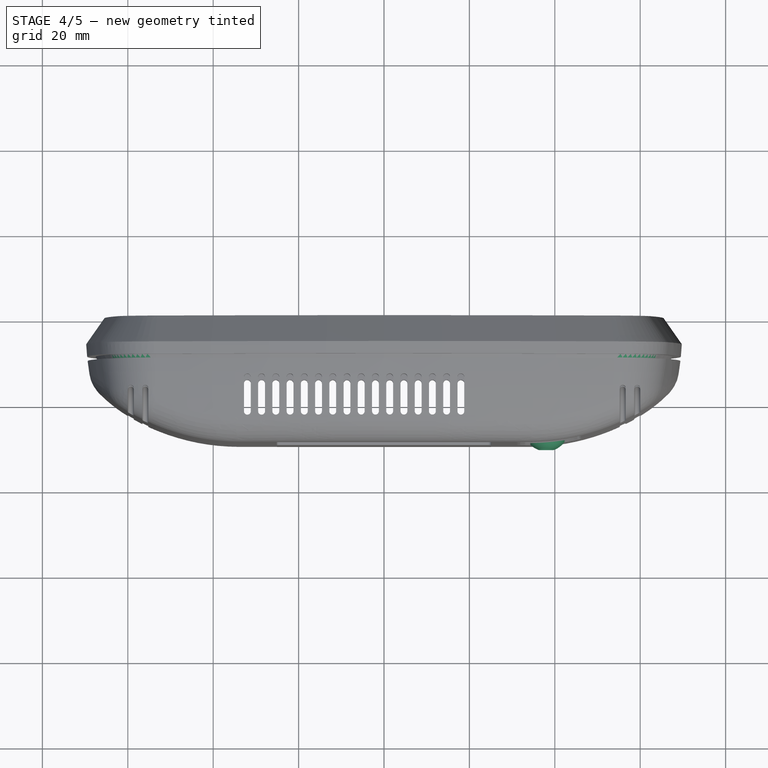
[diagram: stage 4 of 5 — top view after this stage's code; geometry added in this stage tinted green]
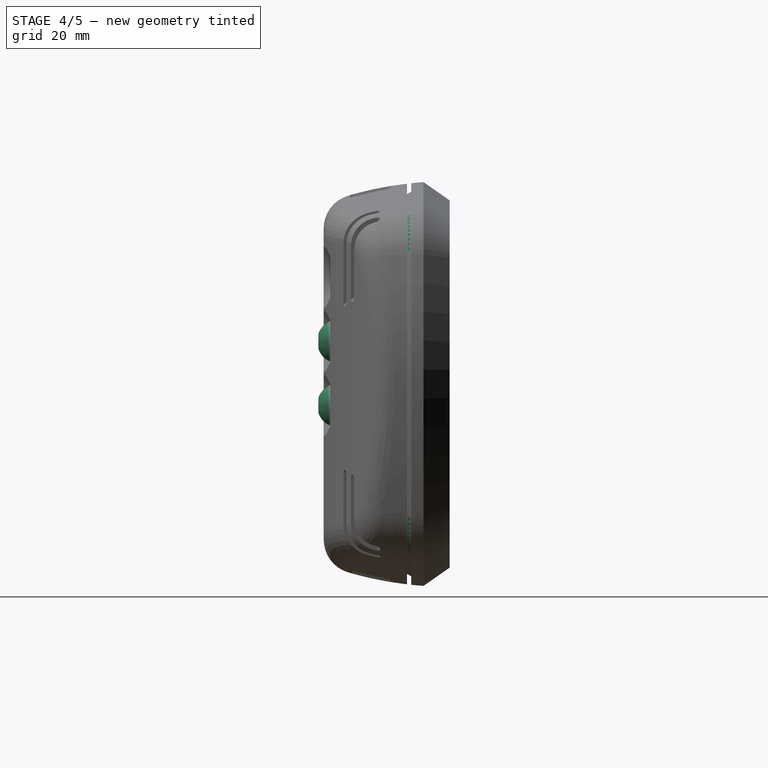
[diagram: stage 4 of 5 — right view after this stage's code; geometry added in this stage tinted green]
FEATURE [Part::FeaturePython] Screw001  label="M5x16-Screw015"  # Fasteners workbench fastener (typed FeaturePython)
  Placement = pos=(38,-28,10) rot=(1,0,0;1.5708rad)
  diameter = 3
  invert = false
  length = 4
  lengthCustom = 16
  matchOuter = false
  offset = 0
  thread = false
  type = 40
FEATURE [Part::FeaturePython] Screw002  label="M5x16-Screw016"  # Fasteners workbench fastener (typed FeaturePython)
  Placement = pos=(38,-28,-5) rot=(1,0,0;1.5708rad)
  diameter = 3
  invert = false
  length = 4
  lengthCustom = 16
  matchOuter = false
  offset = 0
  thread = false
  type = 40
FEATURE [PartDesign::Pocket] Pocket004  label="HB Cable cavity"
  BaseFeature = -> MultiTransform002
  Length = 5
  Length2 = 100
  Profile = -> Sketch031
  Type = 1
FEATURE [PartDesign::AdditivePipe] AdditivePipe013  label="HB Rim top bottom"
  AuxilleryCurvelinear = true
  AuxillerySpineTangent = false
  BaseFeature = -> Pocket004
  Binormal = (0,0,0)
  Mode = 0
  Profile = -> Sketch084
  Spine = -> Sketch027
  SpineTangent = false
  Transformation = 0
  Transition = 0
FEATURE [PartDesign::Pocket] Pocket017  label="HB Inner slit screw right"
  BaseFeature = -> AdditivePipe013
  Length = 5
  Length2 = 100
  Midplane = true
  Profile = -> Sketch085
  Type = 1
FEATURE [PartDesign::Pocket] Pocket018  label="HB Outer slit screw right"
  BaseFeature = -> Pocket017
  Length = 5
  Length2 = 100
  Profile = -> Sketch086
  Reversed = true
  Type = 1
FEATURE [PartDesign::Pocket] Pocket019  label="HB Inner slit screw left"
  BaseFeature = -> Pocket018
  Length = 5
  Length2 = 100
  Midplane = true
  Profile = -> Sketch088
  Type = 1
FEATURE [PartDesign::Pocket] Pocket020  label="HB Outer slit screw left"
  BaseFeature = -> Pocket019
  Length = 5
  Length2 = 100
  Profile = -> Sketch087
  Reversed = true
  Type = 1
FEATURE [PartDesign::SubtractiveLoft] SubtractiveLoft  label="HB Up symbol"
  BaseFeature = -> Pocket020
  Closed = false
  Profile = -> Sketch090
  Ruled = false
  Sections = -> [Sketch089]
FEATURE [Sketcher::SketchObject] Sketch133
  FullyConstrained = true
  MapMode = 5
  Placement = pos=(0,0,0) rot=(1,0,0;1.5708rad)
  Support = -> [XZ_Plane018]
  sketch-geometry (8):
    g0: LineSegment StartX=7 StartY=0 StartZ=0 EndX=21 EndY=0 EndZ=0
    g1: LineSegment StartX=21 StartY=0 StartZ=0 EndX=21 EndY=-19 EndZ=0
    g2: LineSegment StartX=19 StartY=-21 StartZ=0 EndX=9 EndY=-21 EndZ=0
    g3: LineSegment StartX=7 StartY=-19 StartZ=0 EndX=7 EndY=0 EndZ=0
    g4: ArcOfCircle CenterX=19 CenterY=-19 CenterZ=0 NormalX=0 NormalY=0 NormalZ=1 AngleXU=0 Radius=2 StartAngle=4.71239 EndAngle=6.28319
    g5: ArcOfCircle CenterX=9 CenterY=-19 CenterZ=0 NormalX=0 NormalY=0 NormalZ=1 AngleXU=0 Radius=2 StartAngle=3.14159 EndAngle=4.71239
    g6: LineSegment StartX=19 StartY=-19 StartZ=0 EndX=9 EndY=-19 EndZ=0
    g7: LineSegment StartX=14 StartY=-21 StartZ=0 EndX=14 EndY=0 EndZ=0
  constraints (21):
    c: Coincident(g0,g1)
    c: Coincident(g3,g0)
    c: Horizontal(g0)
    c: Horizontal(g2)
    c: Vertical(g1)
    c: Vertical(g3)
    c: Tangent(g1,g4) = 1.5708
    c: Tangent(g2,g4) = 1.5708
    c: Tangent(g3,g5) = 1.5708
    c: Tangent(g2,g5) = 1.5708
    c: Coincident(g6,g4)
    c: Coincident(g6,g5)
    c: Horizontal(g6)
    c: PointOnObject(g7,g2)
    c: PointOnObject(g7,g0)
    c: PointOnObject(g7,g-1)
    c: DistanceX(g7) = 14
    c: DistanceY(g5,g-1) = 19
    c: DistanceX(g6,g6) = 10
    c: Radius(g4) = 2
    c: Symmetric(g5,g4,g7)
FEATURE [PartDesign::Pocket] Pocket026  label="HB Cavity for Phoenix"
  BaseFeature = -> SubtractiveLoft
  Length = 5
  Length2 = 100
  Midplane = true
  Profile = -> Sketch133
  Type = 1
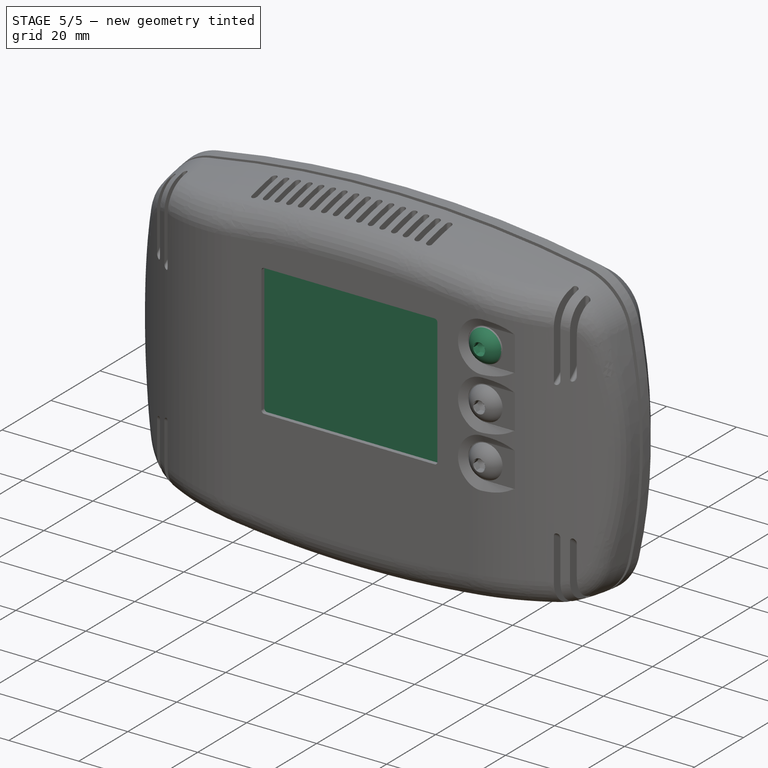
[diagram: stage 5 of 5 — iso view after this stage's code; geometry added in this stage tinted green]
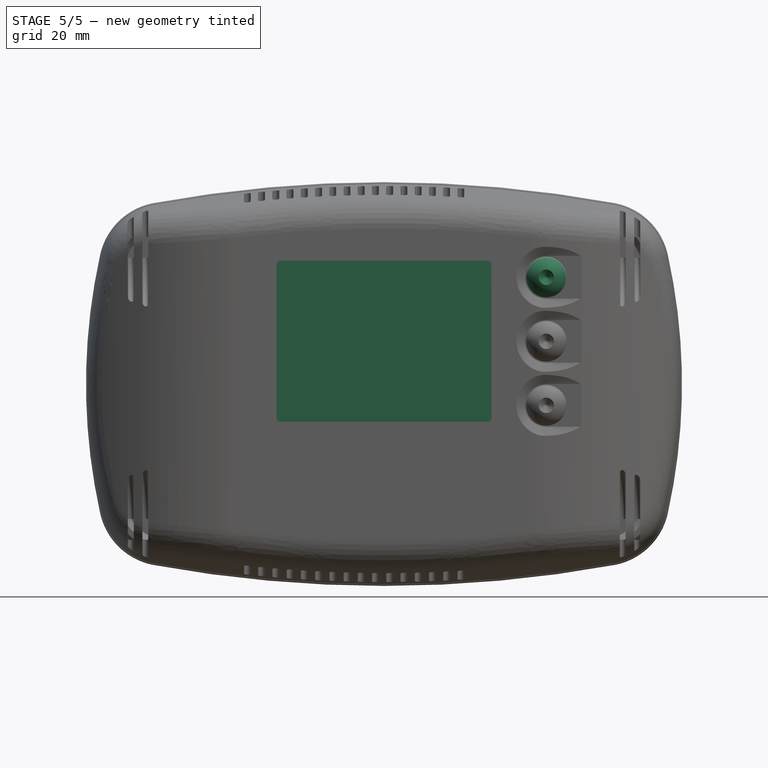
[diagram: stage 5 of 5 — front view after this stage's code; geometry added in this stage tinted green]
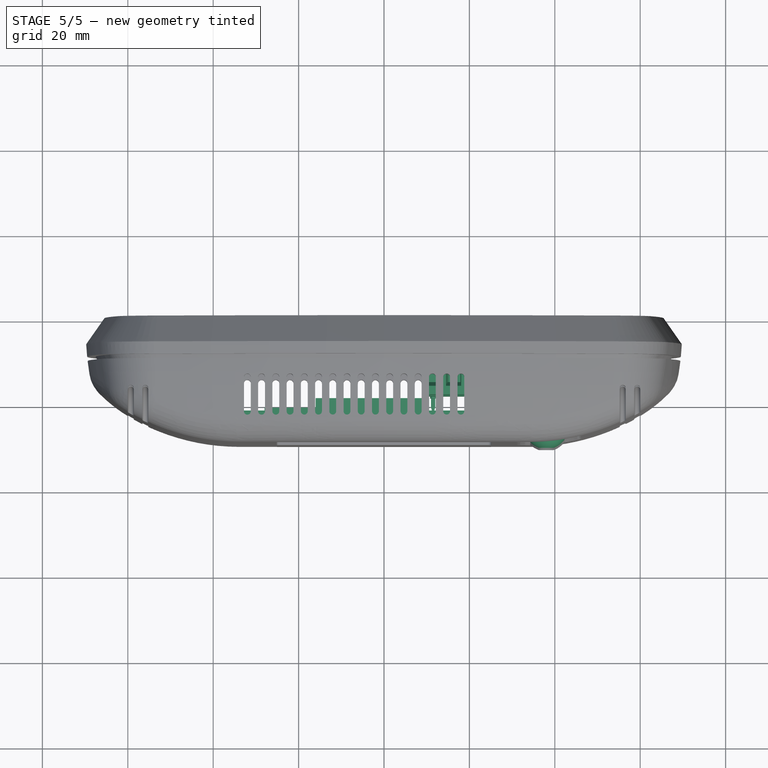
[diagram: stage 5 of 5 — top view after this stage's code; geometry added in this stage tinted green]
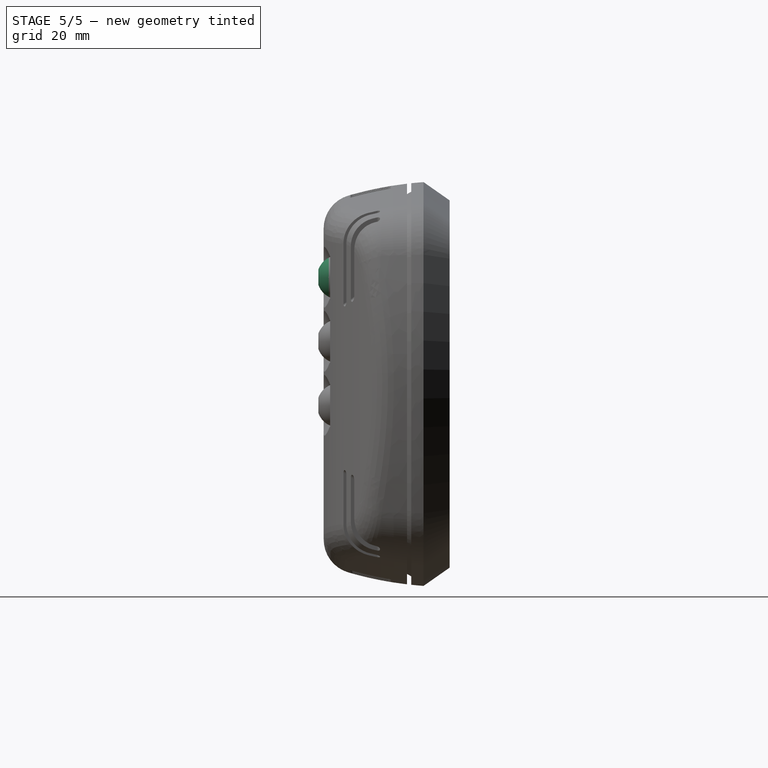
[diagram: stage 5 of 5 — right view after this stage's code; geometry added in this stage tinted green]
FEATURE [Sketcher::SketchObject] Sketch  label="gl base"
  FullyConstrained = true
  MapMode = 5
  Placement = pos=(0,0,0) rot=(1,0,0;1.5708rad)
  Support = -> [XZ_Plane]
  sketch-geometry (8):
    g0: LineSegment StartX=-33.28 StartY=21.36 StartZ=0 EndX=26.98 EndY=21.36 EndZ=0
    g1: LineSegment StartX=26.98 StartY=21.36 StartZ=0 EndX=26.98 EndY=-21.36 EndZ=0
    g2: LineSegment StartX=26.98 StartY=-21.36 StartZ=0 EndX=-33.28 EndY=-21.36 EndZ=0
    g3: LineSegment StartX=-33.28 StartY=-21.36 StartZ=0 EndX=-33.28 EndY=21.36 EndZ=0
    g4: LineSegment StartX=-24.48 StartY=18.36 StartZ=0 EndX=24.48 EndY=18.36 EndZ=0
    g5: LineSegment StartX=24.48 StartY=18.36 StartZ=0 EndX=24.48 EndY=-18.36 EndZ=0
    g6: LineSegment StartX=24.48 StartY=-18.36 StartZ=0 EndX=-24.48 EndY=-18.36 EndZ=0
    g7: LineSegment StartX=-24.48 StartY=-18.36 StartZ=0 EndX=-24.48 EndY=18.36 EndZ=0
  constraints (21):
    c: Coincident(g0,g1)
    c: Coincident(g1,g2)
    c: Coincident(g2,g3)
    c: Coincident(g3,g0)
    c: Horizontal(g2)
    c: Vertical(g3)
    c: DistanceX(g0,g0) = 60.26
    c: DistanceY(g1,g1) = 42.72
    c: Coincident(g4,g5)
    c: Coincident(g5,g6)
    c: Coincident(g6,g7)
    c: Coincident(g7,g4)
    c: Horizontal(g6)
    c: Vertical(g7)
    c: Horizontal(g0)
    c: Symmetric(g4,g4,g-2)
    c: Symmetric(g4,g5,g-1)
    c: DistanceX(g4,g4) = 48.96
    c: DistanceX(g4,g0) = 2.5
    c: DistanceY(g5,g5) = 36.72
    c: Symmetric(g0,g1,g-1)
FEATURE [PartDesign::Pad] Pad  label="GL Base"
  Direction = (1,1,1)
  Length = 4.2
  Length2 = 100
  Placement = pos=(0,0,0) rot=(1,0,0;1.5708rad)
  Profile = -> Sketch
  Reversed = true
  Type = 0
FEATURE [Sketcher::SketchObject] Sketch001  label="gl active area"
  FullyConstrained = true
  MapMode = 5
  Placement = pos=(0,0,0) rot=(1,0,0;1.5708rad)
  Support = -> [XZ_Plane]
  sketch-geometry (4):
    g0: LineSegment StartX=-24.48 StartY=18.36 StartZ=0 EndX=24.48 EndY=18.36 EndZ=0
    g1: LineSegment StartX=24.48 StartY=18.36 StartZ=0 EndX=24.48 EndY=-18.36 EndZ=0
    g2: LineSegment StartX=24.48 StartY=-18.36 StartZ=0 EndX=-24.48 EndY=-18.36 EndZ=0
    g3: LineSegment StartX=-24.48 StartY=-18.36 StartZ=0 EndX=-24.48 EndY=18.36 EndZ=0
  constraints (10):
    c: Coincident(g0,g1)
    c: Coincident(g1,g2)
    c: Coincident(g2,g3)
    c: Coincident(g3,g0)
    c: Horizontal(g2)
    c: Vertical(g3)
    c: Symmetric(g0,g0,g-2)
    c: Symmetric(g0,g1,g-1)
    c: DistanceY(g1,g1) = 36.72
    c: DistanceX(g0,g0) = 48.96
FEATURE [PartDesign::Pad] Pad001  label="GL active area"
  BaseFeature = -> Pad
  Direction = (1,1,1)
  Length = 0.1
  Length2 = 100
  Placement = pos=(0,0,0) rot=(1,0,0;1.5708rad)
  Profile = -> Sketch001
  Type = 0
FEATURE [PartDesign::Body] Body  label="Glass"
  Group = -> [Sketch,Pad,Sketch001,Pad001]
  Origin = -> Origin
  Tip = -> Pad001
FEATURE [Sketcher::SketchObject] Sketch003  label="pc skeleton"
  FullyConstrained = true
  MapMode = 5
  Placement = pos=(0,0,0) rot=(1,0,0;1.5708rad)
  Support = -> [XZ_Plane001]
  sketch-geometry (8):
    g0: LineSegment StartX=-33.28 StartY=21.36 StartZ=0 EndX=26.98 EndY=21.36 EndZ=0
    g1: LineSegment StartX=26.98 StartY=21.36 StartZ=0 EndX=26.98 EndY=-21.36 EndZ=0
    g2: LineSegment StartX=26.98 StartY=-21.36 StartZ=0 EndX=-33.28 EndY=-21.36 EndZ=0
    g3: LineSegment StartX=-33.28 StartY=-21.36 StartZ=0 EndX=-33.28 EndY=21.36 EndZ=0
    g4: LineSegment StartX=-24.48 StartY=18.36 StartZ=0 EndX=24.48 EndY=18.36 EndZ=0
    g5: LineSegment StartX=24.48 StartY=18.36 StartZ=0 EndX=24.48 EndY=-18.36 EndZ=0
    g6: LineSegment StartX=24.48 StartY=-18.36 StartZ=0 EndX=-24.48 EndY=-18.36 EndZ=0
    g7: LineSegment StartX=-24.48 StartY=-18.36 StartZ=0 EndX=-24.48 EndY=18.36 EndZ=0
  constraints (22):
    c: Coincident(g0,g1)
    c: Coincident(g1,g2)
    c: Coincident(g2,g3)
    c: Coincident(g3,g0)
    c: Horizontal(g2)
    c: Vertical(g3)
    c: DistanceX(g0,g0) = 60.26
    c: DistanceY(g1,g1) = 42.72
    c: Coincident(g4,g5)
    c: Coincident(g5,g6)
    c: Coincident(g6,g7)
    c: Coincident(g7,g4)
    c: Horizontal(g6)
    c: Vertical(g7)
    c: Horizontal(g0)
    c: Symmetric(g4,g4,g-2)
    c: Symmetric(g4,g5,g-1)
    c: DistanceX(g4,g4) = 48.96
    c: DistanceX(g4,g0) = 2.5
    c: DistanceY(g5,g5) = 36.72
    c: Symmetric(g0,g1,g-1)
    c: DistanceX(g0,g-1) = 33.28
FEATURE [Sketcher::SketchObject] Sketch002  label="pc base"
  AttachmentOffset = pos=(0,0,-4.2) rot=(0,0,1;0rad)
  ExternalGeometry = -> [Sketch003]
  FullyConstrained = true
  MapMode = 5
  Placement = pos=(0,4.2,9e-16) rot=(1,0,0;1.5708rad)
  Support = -> [XZ_Plane001]
  sketch-geometry (12):
    g0: LineSegment StartX=33.49 StartY=21.45 StartZ=0 EndX=-43.69 EndY=21.45 EndZ=0
    g1: LineSegment StartX=-43.69 StartY=21.45 StartZ=0 EndX=-43.69 EndY=-21.45 EndZ=0
    g2: LineSegment StartX=-43.69 StartY=-21.45 StartZ=0 EndX=33.49 EndY=-21.45 EndZ=0
    g3: LineSegment StartX=33.49 StartY=-21.45 StartZ=0 EndX=33.49 EndY=21.45 EndZ=0
    g4: LineSegment StartX=-36.77 StartY=18.45 StartZ=0 EndX=30.49 EndY=18.45 EndZ=0
    g5: LineSegment StartX=30.49 StartY=18.45 StartZ=0 EndX=30.49 EndY=-18.45 EndZ=0
    g6: LineSegment StartX=30.49 StartY=-18.45 StartZ=0 EndX=-36.77 EndY=-18.45 EndZ=0
    g7: LineSegment StartX=-36.77 StartY=-18.45 StartZ=0 EndX=-36.77 EndY=18.45 EndZ=0
    g8: Circle CenterX=30.49 CenterY=18.45 CenterZ=0 NormalX=0 NormalY=0 NormalZ=1 AngleXU=0 Radius=1.5
    g9: Circle CenterX=30.49 CenterY=-18.45 CenterZ=0 NormalX=0 NormalY=0 NormalZ=1 AngleXU=0 Radius=1.5
    g10: Circle CenterX=-36.77 CenterY=-18.45 CenterZ=0 NormalX=0 NormalY=0 NormalZ=1 AngleXU=0 Radius=1.5
    g11: Circle CenterX=-36.77 CenterY=18.45 CenterZ=0 NormalX=0 NormalY=0 NormalZ=1 AngleXU=0 Radius=1.5
  constraints (31):
    c: Coincident(g0,g1)
    c: Coincident(g1,g2)
    c: Coincident(g2,g3)
    c: Coincident(g3,g0)
    c: Horizontal(g0)
    c: Horizontal(g2)
    c: Vertical(g1)
    c: Symmetric(g0,g2,g-1)
    c: DistanceX(g0,g-3) = 10.41
    c: DistanceX(g0,g0) = 77.18
    c: DistanceY(g3,g3) = 42.9
    c: Coincident(g4,g5)
    c: Coincident(g5,g6)
    c: Coincident(g6,g7)
    c: Coincident(g7,g4)
    c: Horizontal(g4)
    c: Horizontal(g6)
    c: Vertical(g7)
    c: Symmetric(g4,g5,g-1)
    c: Coincident(g8,g4)
    c: Coincident(g9,g5)
    c: Coincident(g10,g6)
    c: Coincident(g11,g4)
    c: Equal(g8,g11)
    c: Equal(g11,g10)
    c: Equal(g10,g9)
    c: Radius(g9) = 1.5
    c: DistanceX(g0,g11) = 6.92
    c: DistanceX(g8,g0) = 3
    c: DistanceY(g8,g0) = 3
    c: DistanceX(g0,g-1) = 43.69
FEATURE [PartDesign::Pad] Pad002  label="PC base"
  Direction = (1,1,1)
  Length = 1.6
  Length2 = 100
  Placement = pos=(0,0,0) rot=(1,0,0;1.5708rad)
  Profile = -> Sketch002
  Reversed = true
  Type = 0
FEATURE [Sketcher::SketchObject] Sketch004  label="pc hole"
  ExternalGeometry = -> [Sketch002]
  FullyConstrained = true
  MapMode = 5
  Placement = pos=(0,0,0) rot=(1,0,0;1.5708rad)
  Support = -> [XZ_Plane001]
  sketch-geometry (1):
    g0: Circle CenterX=-41.69 CenterY=-16.51 CenterZ=0 NormalX=0 NormalY=0 NormalZ=1 AngleXU=0 Radius=0.5
  constraints (3):
    c: Radius(g0) = 0.5
    c: DistanceY(g0,g-1) = 16.51
    c: DistanceX(g0,g-1) = 41.69
FEATURE [PartDesign::Pocket] Pocket  label="PC FirstHole"
  BaseFeature = -> Pad002
  Length = 5
  Length2 = 100
  Midplane = true
  Placement = pos=(0,0,0) rot=(1,0,0;1.5708rad)
  Profile = -> Sketch004
  Type = 1
FEATURE [PartDesign::LinearPattern] LinearPattern  label="PC OtherHoles"
  BaseFeature = -> Pocket
  Direction = -> Z_Axis001
  Length = 33.02
  Occurrences = 14
  Originals = -> [Pocket]
  Placement = pos=(0,0,0) rot=(1,0,0;1.5708rad)
FEATURE [PartDesign::Body] Body001  label="PCB"
  Group = -> [Sketch002,Sketch003,Pad002,Sketch004,Pocket,LinearPattern]
  Origin = -> Origin001
  Tip = -> LinearPattern
FEATURE [Sketcher::SketchObject] Sketch006  label="sd skeleton"
  FullyConstrained = true
  MapMode = 5
  Placement = pos=(0,0,0) rot=(1,0,0;1.5708rad)
  Support = -> [XZ_Plane002]
  sketch-geometry (8):
    g0: LineSegment StartX=-33.28 StartY=21.36 StartZ=0 EndX=26.98 EndY=21.36 EndZ=0
    g1: LineSegment StartX=26.98 StartY=21.36 StartZ=0 EndX=26.98 EndY=-21.36 EndZ=0
    g2: LineSegment StartX=26.98 StartY=-21.36 StartZ=0 EndX=-33.28 EndY=-21.36 EndZ=0
    g3: LineSegment StartX=-33.28 StartY=-21.36 StartZ=0 EndX=-33.28 EndY=21.36 EndZ=0
    g4: LineSegment StartX=-24.48 StartY=18.36 StartZ=0 EndX=24.48 EndY=18.36 EndZ=0
    g5: LineSegment StartX=24.48 StartY=18.36 StartZ=0 EndX=24.48 EndY=-18.36 EndZ=0
    g6: LineSegment StartX=24.48 StartY=-18.36 StartZ=0 EndX=-24.48 EndY=-18.36 EndZ=0
    g7: LineSegment StartX=-24.48 StartY=-18.36 StartZ=0 EndX=-24.48 EndY=18.36 EndZ=0
  constraints (21):
    c: Coincident(g0,g1)
    c: Coincident(g1,g2)
    c: Coincident(g2,g3)
    c: Coincident(g3,g0)
    c: Horizontal(g2)
    c: Vertical(g3)
    c: DistanceX(g0,g0) = 60.26
    c: DistanceY(g1,g1) = 42.72
    c: Coincident(g4,g5)
    c: Coincident(g5,g6)
    c: Coincident(g6,g7)
    c: Coincident(g7,g4)
    c: Horizontal(g6)
    c: Vertical(g7)
    c: Horizontal(g0)
    c: Symmetric(g4,g4,g-2)
    c: Symmetric(g4,g5,g-1)
    c: DistanceX(g4,g4) = 48.96
    c: DistanceX(g4,g0) = 2.5
    c: DistanceY(g5,g5) = 36.72
    c: Symmetric(g0,g1,g-1)
FEATURE [Sketcher::SketchObject] Sketch005  label="sd base"
  AttachmentOffset = pos=(0,0,-5.8) rot=(0,0,1;0rad)
  ExternalGeometry = -> [Sketch006]
  FullyConstrained = true
  MapMode = 5
  Placement = pos=(0,5.8,1.3e-15) rot=(1,0,0;1.5708rad)
  Support = -> [XZ_Plane002]
  sketch-geometry (6):
    g0: LineSegment StartX=-16.02 StartY=19.96 StartZ=0 EndX=10.58 EndY=19.96 EndZ=0
    g1: LineSegment StartX=10.58 StartY=19.96 StartZ=0 EndX=10.58 EndY=10.96 EndZ=0
    g2: LineSegment StartX=8.48 StartY=3.26 StartZ=0 EndX=-16.02 EndY=3.26 EndZ=0
    g3: LineSegment StartX=-16.02 StartY=3.26 StartZ=0 EndX=-16.02 EndY=19.96 EndZ=0
    g4: LineSegment StartX=10.58 StartY=10.96 StartZ=0 EndX=8.48 EndY=8.86 EndZ=0
    g5: LineSegment StartX=8.48 StartY=8.86 StartZ=0 EndX=8.48 EndY=3.26 EndZ=0
  constraints (18):
    c: Coincident(g0,g1)
    c: Coincident(g2,g3)
    c: Coincident(g3,g0)
    c: Horizontal(g0)
    c: Horizontal(g2)
    c: Vertical(g1)
    c: Vertical(g3)
    c: DistanceX(g0,g-3) = 16.4
    c: DistanceX(g0,g0) = 26.6
    c: DistanceY(g0,g-3) = 1.4
    c: Coincident(g4,g5)
    c: Vertical(g5)
    c: Coincident(g2,g5)
    c: Coincident(g4,g1)
    c: DistanceY(g2,g0) = 16.7
    c: DistanceX(g2,g2) = 24.5
    c: DistanceY(g5,g5) = 5.6
    c: Angle(g5,g4) = 2.35619
FEATURE [PartDesign::Pad] Pad003  label="SD Base"
  Direction = (1,1,1)
  Length = 2.9
  Length2 = 100
  Placement = pos=(0,0,0) rot=(1,0,0;1.5708rad)
  Profile = -> Sketch005
  Reversed = true
  Type = 0
FEATURE [PartDesign::Body] Body002  label="SD Card Slot"
  Group = -> [Sketch005,Sketch006,Pad003]
  Origin = -> Origin002
  Tip = -> Pad003
FEATURE [Sketcher::SketchObject] Sketch009  label="cm skeleton"
  AttachmentOffset = pos=(0,0,-4.2) rot=(0,0,1;0rad)
  ExternalGeometry = -> [Sketch003]
  FullyConstrained = true
  MapMode = 5
  Placement = pos=(0,4.2,9e-16) rot=(1,0,0;1.5708rad)
  Support = -> [XZ_Plane003]
  sketch-geometry (12):
    g0: LineSegment StartX=33.49 StartY=21.45 StartZ=0 EndX=-43.69 EndY=21.45 EndZ=0
    g1: LineSegment StartX=-43.69 StartY=21.45 StartZ=0 EndX=-43.69 EndY=-21.45 EndZ=0
    g2: LineSegment StartX=-43.69 StartY=-21.45 StartZ=0 EndX=33.49 EndY=-21.45 EndZ=0
    g3: LineSegment StartX=33.49 StartY=-21.45 StartZ=0 EndX=33.49 EndY=21.45 EndZ=0
    g4: LineSegment StartX=-36.77 StartY=18.45 StartZ=0 EndX=30.49 EndY=18.45 EndZ=0
    g5: LineSegment StartX=30.49 StartY=18.45 StartZ=0 EndX=30.49 EndY=-18.45 EndZ=0
    g6: LineSegment StartX=30.49 StartY=-18.45 StartZ=0 EndX=-36.77 EndY=-18.45 EndZ=0
    g7: LineSegment StartX=-36.77 StartY=-18.45 StartZ=0 EndX=-36.77 EndY=18.45 EndZ=0
    g8: Circle CenterX=30.49 CenterY=18.45 CenterZ=0 NormalX=0 NormalY=0 NormalZ=1 AngleXU=0 Radius=1.5
    g9: Circle CenterX=30.49 CenterY=-18.45 CenterZ=0 NormalX=0 NormalY=0 NormalZ=1 AngleXU=0 Radius=1.5
    g10: Circle CenterX=-36.77 CenterY=-18.45 CenterZ=0 NormalX=0 NormalY=0 NormalZ=1 AngleXU=0 Radius=1.5
    g11: Circle CenterX=-36.77 CenterY=18.45 CenterZ=0 NormalX=0 NormalY=0 NormalZ=1 AngleXU=0 Radius=1.5
  constraints (30):
    c: Coincident(g0,g1)
    c: Coincident(g1,g2)
    c: Coincident(g2,g3)
    c: Coincident(g3,g0)
    c: Horizontal(g0)
    c: Horizontal(g2)
    c: Vertical(g1)
    c: Symmetric(g0,g2,g-1)
    c: DistanceX(g0,g-3) = 10.41
    c: DistanceX(g0,g0) = 77.18
    c: DistanceY(g3,g3) = 42.9
    c: Coincident(g4,g5)
    c: Coincident(g5,g6)
    c: Coincident(g6,g7)
    c: Coincident(g7,g4)
    c: Horizontal(g4)
    c: Horizontal(g6)
    c: Vertical(g7)
    c: Symmetric(g4,g5,g-1)
    c: Coincident(g8,g4)
    c: Coincident(g9,g5)
    c: Coincident(g10,g6)
    c: Coincident(g11,g4)
    c: Equal(g8,g11)
    c: Equal(g11,g10)
    c: Equal(g10,g9)
    c: Radius(g9) = 1.5
    c: DistanceX(g0,g11) = 6.92
    c: DistanceX(g8,g0) = 3
    c: DistanceY(g8,g0) = 3
FEATURE [Sketcher::SketchObject] Sketch010  label="cm components"
  AttachmentOffset = pos=(0,0,-5.8) rot=(0,0,1;0rad)
  ExternalGeometry = -> [Sketch009]
  FullyConstrained = true
  MapMode = 5
  Placement = pos=(0,5.8,1.3e-15) rot=(1,0,0;1.5708rad)
  Support = -> [XZ_Plane003]
  sketch-geometry (4):
    g0: LineSegment StartX=-27.99 StartY=2.05 StartZ=0 EndX=6.01 EndY=2.05 EndZ=0
    g1: LineSegment StartX=6.01 StartY=2.05 StartZ=0 EndX=6.01 EndY=-17.45 EndZ=0
    g2: LineSegment StartX=6.01 StartY=-17.45 StartZ=0 EndX=-27.99 EndY=-17.45 EndZ=0
    g3: LineSegment StartX=-27.99 StartY=-17.45 StartZ=0 EndX=-27.99 EndY=2.05 EndZ=0
  constraints (12):
    c: Coincident(g0,g1)
    c: Coincident(g1,g2)
    c: Coincident(g2,g3)
    c: Coincident(g3,g0)
    c: Horizontal(g0)
    c: Horizontal(g2)
    c: Vertical(g1)
    c: Vertical(g3)
    c: DistanceX(g-3,g2) = 15.7
    c: DistanceX(g0,g0) = 34
    c: DistanceY(g-3,g2) = 4
    c: DistanceY(g1,g1) = 19.5
FEATURE [PartDesign::Pad] Pad004
  Direction = (1,1,1)
  Length = 1
  Length2 = 100
  Placement = pos=(0,0,0) rot=(1,0,0;1.5708rad)
  Profile = -> Sketch010
  Reversed = true
  Type = 0
FEATURE [PartDesign::Body] Body003  label="Components"
  Group = -> [Sketch009,Sketch010,Pad004]
  Origin = -> Origin003
  Tip = -> Pad004
FEATURE [Part::Compound] Compound  label="Display"
  Links = -> [Body,Body001,Body002,Body003]
  Placement = pos=(0,-27.92,10) rot=(0,0,1;0rad)
FEATURE [Part::FeaturePython] Screw  label="M5x16-Screw"  # Fasteners workbench fastener (typed FeaturePython)
  Placement = pos=(38,-28,25) rot=(1,0,0;1.5708rad)
  diameter = 3
  invert = false
  length = 4
  lengthCustom = 16
  matchOuter = false
  offset = 0
  thread = false
  type = 40
FEATURE [Part::Feature] Part__Feature004  label="mstb_2.5-2-g"
  Placement = pos=(-36.6267,-37.7727,-2.5) rot=(0,0,1;0rad)
  shape: bbox 12 x 12.1 x 10 mm, 208 faces (baked)
FEATURE [App::Part] mstb_2_5_2_g  label="mstb_2.5-2-g001"
  Group = -> [Part__Feature004]
  Origin = -> Origin023
FEATURE [Part::Feature] Part__Feature005  label="mstb_2.5-2-st"
  Placement = pos=(-48.6267,-39.1127,-2.5) rot=(0,0,1;0rad)
  shape: bbox 18.2 x 15 x 10 mm, 170 faces (baked)
FEATURE [App::Part] mstb_2_5_2_st  label="mstb_2.5-2-st001"
  Group = -> [Part__Feature005]
  Origin = -> Origin024
  Placement = pos=(12.1,1.35,0) rot=(0,0,1;0rad)
FEATURE [Part::Compound] Compound004  label="Phoenix"
  Links = -> [mstb_2_5_2_g,mstb_2_5_2_st]
  Placement = pos=(9,-18,-19) rot=(0,-1,0;1.5708rad)
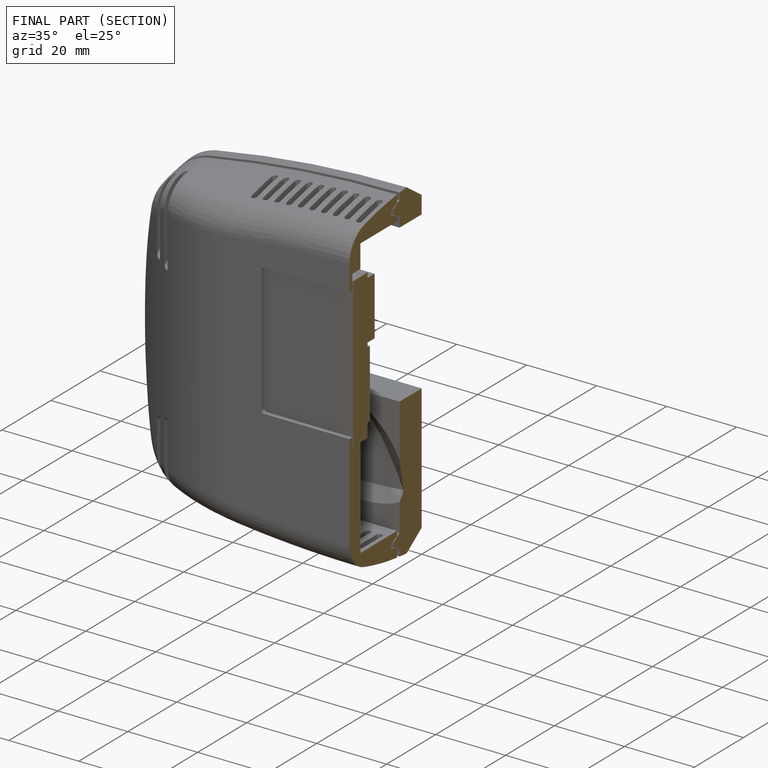
[diagram: finished part — half-section view (interior)]
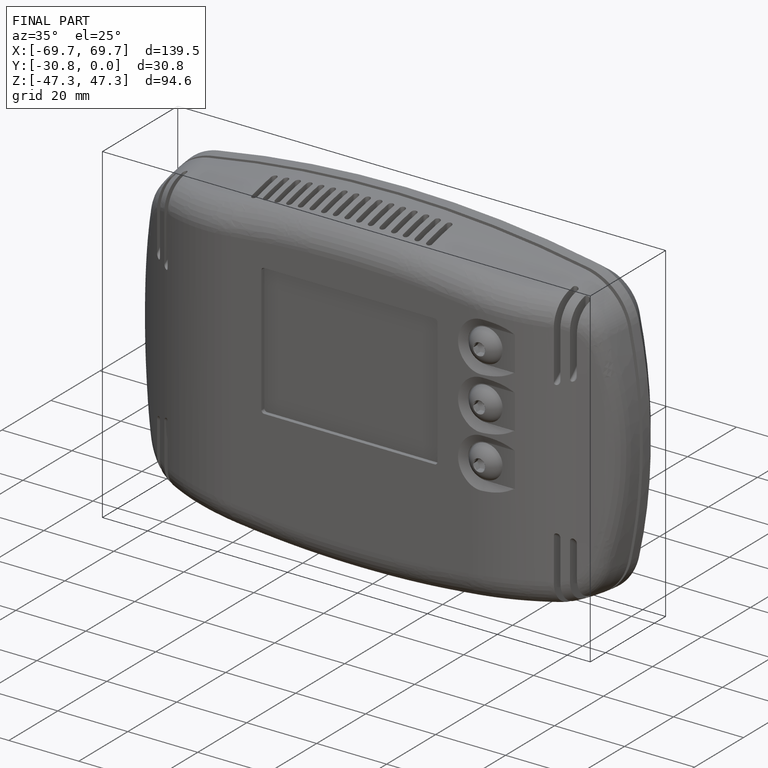
[diagram: finished part — iso view with bounding-box wireframe]
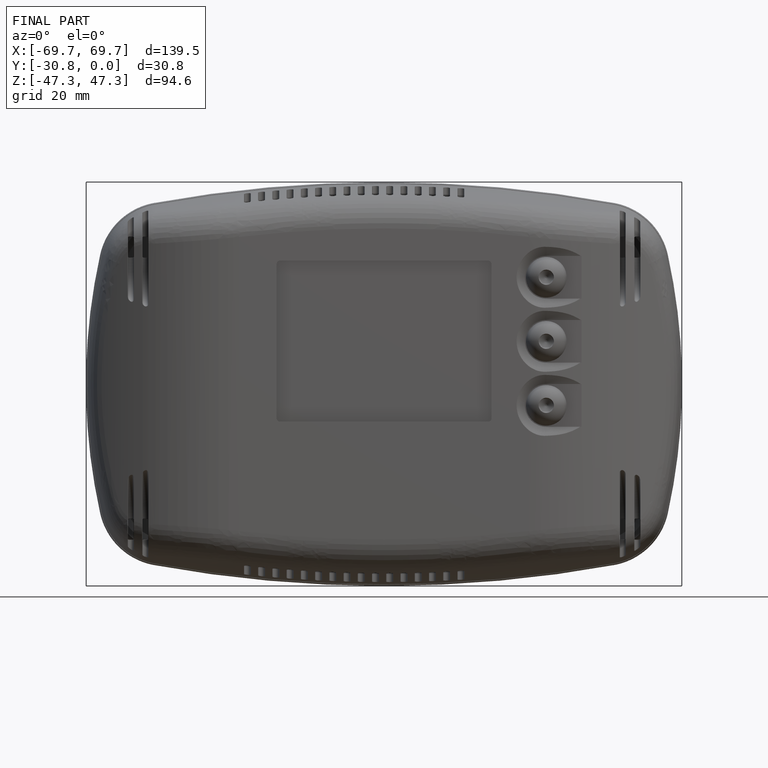
[diagram: finished part — front view with bounding-box wireframe]
